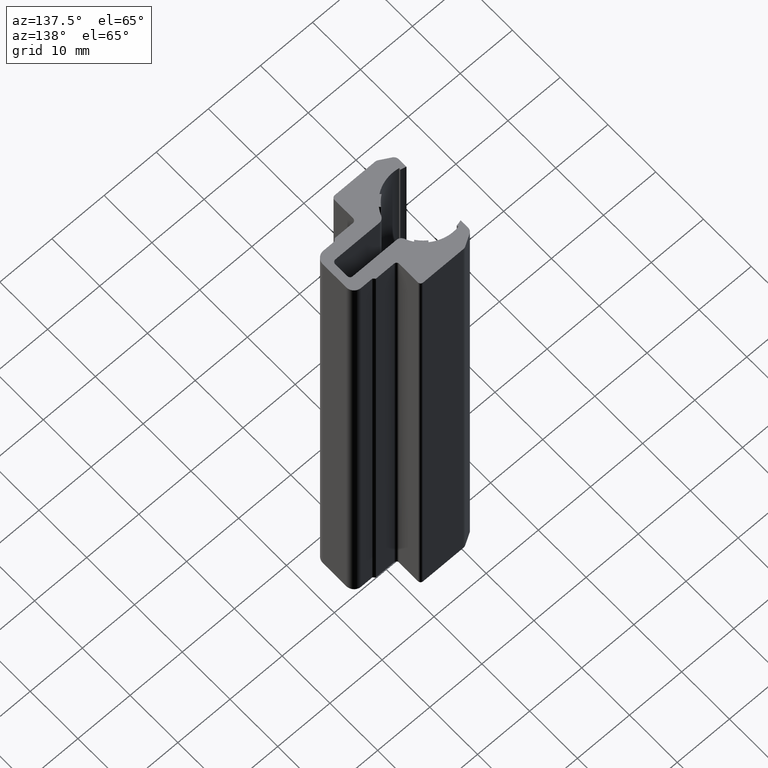
[diagram: clean part render]
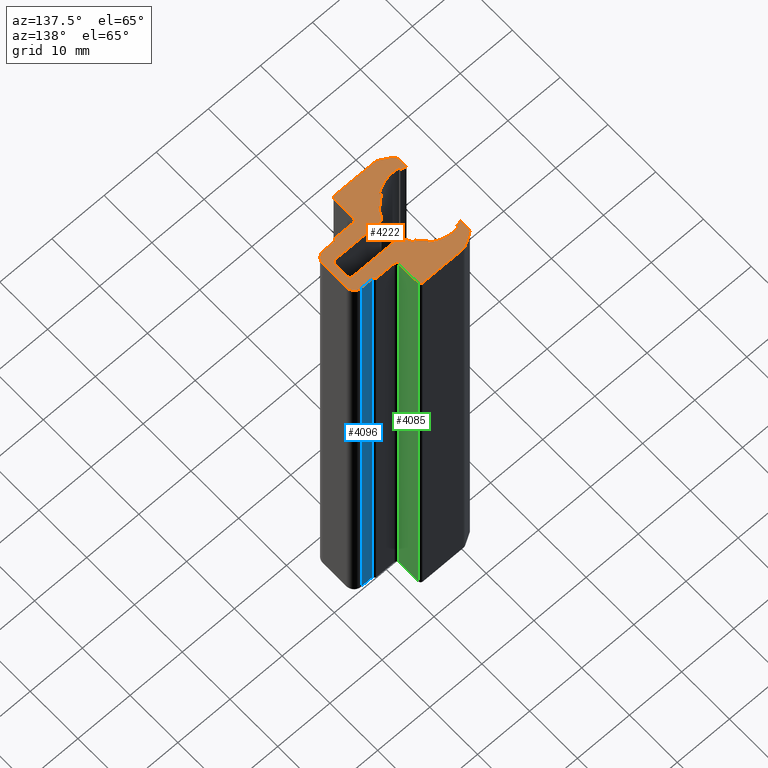
[diagram: same view with three faces highlighted in distinct colors, each labeled with its STEP entity id]
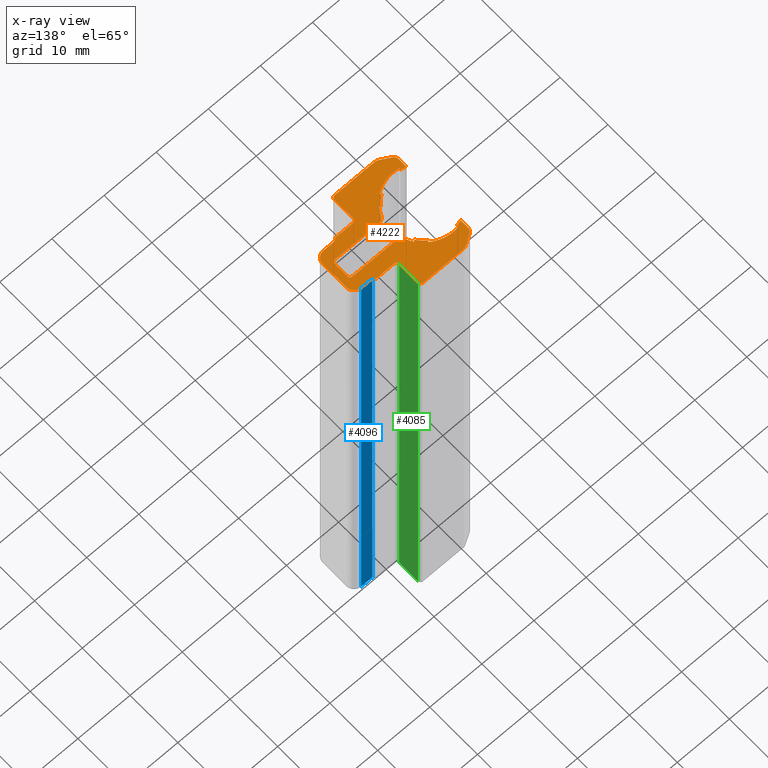
[diagram: x-ray of the same camera — body ghosted, the three highlighted faces saturated]
A machine part, auxiliary view with three faces highlighted in distinct colors.
The next image is the same camera in x-ray (body ghosted, the three faces saturated) — at least one of them is partly hidden behind the body in this view.
Their STEP definitions:

[orange] entity #4222 — the highlighted planar face has unit normal (0, 0, 1).
#216=FACE_OUTER_BOUND('',#418,.T.);
#418=EDGE_LOOP('',(#3619,#3620,#3621,#3622,#3623,#3624,#3625,#3626,#3627,
#3628,#3629,#3630,#3631,#3632,#3633,#3634,#3635,#3636,#3637,#3638,#3639,
#3640,#3641,#3642,#3643,#3644,#3645,#3646,#3647,#3648,#3649,#3650,#3651,
#3652,#3653,#3654,#3655,#3656,#3657,#3658,#3659,#3660,#3661,#3662,#3663,
#3664,#3665,#3666,#3667,#3668,#3669,#3670,#3671,#3672,#3673,#3674,#3675,
#3676,#3677,#3678,#3679,#3680,#3681,#3682,#3683,#3684,#3685,#3686,#3687,
#3688,#3689,#3690,#3691,#3692,#3693,#3694,#3695,#3696,#3697,#3698,#3699,
#3700,#3701,#3702,#3703,#3704,#3705,#3706,#3707,#3708,#3709,#3710,#3711,
#3712,#3713,#3714,#3715,#3716,#3717,#3718,#3719,#3720,#3721,#3722,#3723,
#3724,#3725,#3726,#3727,#3728,#3729,#3730,#3731,#3732,#3733,#3734,#3735,
#3736,#3737,#3738,#3739,#3740,#3741,#3742,#3743,#3744,#3745,#3746,#3747,
#3748,#3749,#3750,#3751,#3752,#3753,#3754,#3755,#3756,#3757,#3758,#3759,
#3760,#3761,#3762,#3763,#3764,#3765,#3766,#3767,#3768,#3769,#3770,#3771,
#3772,#3773,#3774,#3775,#3776,#3777,#3778,#3779,#3780,#3781,#3782,#3783,
#3784,#3785,#3786,#3787,#3788,#3789,#3790,#3791,#3792,#3793,#3794,#3795,
#3796,#3797,#3798,#3799,#3800,#3801,#3802,#3803,#3804,#3805,#3806,#3807,
#3808,#3809,#3810,#3811,#3812,#3813,#3814,#3815,#3816,#3817,#3818));
#419=LINE('',#5458,#1019);
#423=LINE('',#5466,#1023);
#426=LINE('',#5472,#1026);
#429=LINE('',#5478,#1029);
#432=LINE('',#5484,#1032);
#435=LINE('',#5490,#1035);
#438=LINE('',#5496,#1038);
#441=LINE('',#5502,#1041);
#444=LINE('',#5508,#1044);
#447=LINE('',#5514,#1047);
#450=LINE('',#5520,#1050);
#453=LINE('',#5526,#1053);
#456=LINE('',#5532,#1056);
#459=LINE('',#5538,#1059);
#462=LINE('',#5544,#1062);
#465=LINE('',#5550,#1065);
#468=LINE('',#5556,#1068);
#471=LINE('',#5562,#1071);
#474=LINE('',#5568,#1074);
#477=LINE('',#5574,#1077);
#480=LINE('',#5580,#1080);
#483=LINE('',#5586,#1083);
#486=LINE('',#5592,#1086);
#489=LINE('',#5598,#1089);
#492=LINE('',#5604,#1092);
#495=LINE('',#5610,#1095);
#498=LINE('',#5616,#1098);
#501=LINE('',#5622,#1101);
#504=LINE('',#5628,#1104);
#507=LINE('',#5634,#1107);
#510=LINE('',#5640,#1110);
#513=LINE('',#5646,#1113);
#516=LINE('',#5652,#1116);
#519=LINE('',#5658,#1119);
#522=LINE('',#5664,#1122);
#525=LINE('',#5670,#1125);
#528=LINE('',#5676,#1128);
#531=LINE('',#5682,#1131);
#534=LINE('',#5688,#1134);
#537=LINE('',#5694,#1137);
#540=LINE('',#5700,#1140);
#543=LINE('',#5706,#1143);
#546=LINE('',#5712,#1146);
#549=LINE('',#5718,#1149);
#552=LINE('',#5724,#1152);
#555=LINE('',#5730,#1155);
#558=LINE('',#5736,#1158);
#561=LINE('',#5742,#1161);
#564=LINE('',#5748,#1164);
#567=LINE('',#5754,#1167);
#570=LINE('',#5760,#1170);
#573=LINE('',#5766,#1173);
#576=LINE('',#5772,#1176);
#579=LINE('',#5778,#1179);
#582=LINE('',#5784,#1182);
#585=LINE('',#5790,#1185);
#588=LINE('',#5796,#1188);
#591=LINE('',#5802,#1191);
#594=LINE('',#5808,#1194);
#597=LINE('',#5814,#1197);
#600=LINE('',#5820,#1200);
#603=LINE('',#5826,#1203);
#606=LINE('',#5832,#1206);
#609=LINE('',#5838,#1209);
#612=LINE('',#5844,#1212);
#615=LINE('',#5850,#1215);
#618=LINE('',#5856,#1218);
#621=LINE('',#5862,#1221);
#624=LINE('',#5868,#1224);
#627=LINE('',#5874,#1227);
#630=LINE('',#5880,#1230);
#633=LINE('',#5886,#1233);
#636=LINE('',#5892,#1236);
#639=LINE('',#5898,#1239);
#642=LINE('',#5904,#1242);
#645=LINE('',#5910,#1245);
#648=LINE('',#5916,#1248);
#651=LINE('',#5922,#1251);
#654=LINE('',#5928,#1254);
#657=LINE('',#5934,#1257);
#660=LINE('',#5940,#1260);
#663=LINE('',#5946,#1263);
#666=LINE('',#5952,#1266);
#669=LINE('',#5958,#1269);
#672=LINE('',#5964,#1272);
#675=LINE('',#5970,#1275);
#678=LINE('',#5976,#1278);
#681=LINE('',#5982,#1281);
#684=LINE('',#5988,#1284);
#687=LINE('',#5994,#1287);
#690=LINE('',#6000,#1290);
#693=LINE('',#6006,#1293);
#696=LINE('',#6012,#1296);
#699=LINE('',#6018,#1299);
#702=LINE('',#6024,#1302);
#705=LINE('',#6030,#1305);
#708=LINE('',#6036,#1308);
#711=LINE('',#6042,#1311);
#714=LINE('',#6048,#1314);
#717=LINE('',#6054,#1317);
#720=LINE('',#6060,#1320);
#723=LINE('',#6066,#1323);
#726=LINE('',#6072,#1326);
#729=LINE('',#6078,#1329);
#732=LINE('',#6084,#1332);
#735=LINE('',#6090,#1335);
#738=LINE('',#6096,#1338);
#741=LINE('',#6102,#1341);
#744=LINE('',#6108,#1344);
#747=LINE('',#6114,#1347);
#750=LINE('',#6120,#1350);
#753=LINE('',#6126,#1353);
#756=LINE('',#6132,#1356);
#759=LINE('',#6138,#1359);
#762=LINE('',#6144,#1362);
#765=LINE('',#6150,#1365);
#768=LINE('',#6156,#1368);
#771=LINE('',#6162,#1371);
#774=LINE('',#6168,#1374);
#777=LINE('',#6174,#1377);
#780=LINE('',#6180,#1380);
#783=LINE('',#6186,#1383);
#786=LINE('',#6192,#1386);
#789=LINE('',#6198,#1389);
#792=LINE('',#6204,#1392);
#795=LINE('',#6210,#1395);
#798=LINE('',#6216,#1398);
#801=LINE('',#6222,#1401);
#804=LINE('',#6228,#1404);
#807=LINE('',#6234,#1407);
#810=LINE('',#6240,#1410);
#813=LINE('',#6246,#1413);
#816=LINE('',#6252,#1416);
#819=LINE('',#6258,#1419);
#822=LINE('',#6264,#1422);
#825=LINE('',#6270,#1425);
#828=LINE('',#6276,#1428);
#831=LINE('',#6282,#1431);
#834=LINE('',#6288,#1434);
#837=LINE('',#6294,#1437);
#840=LINE('',#6300,#1440);
#843=LINE('',#6306,#1443);
#846=LINE('',#6312,#1446);
#849=LINE('',#6318,#1449);
#852=LINE('',#6324,#1452);
#855=LINE('',#6330,#1455);
#858=LINE('',#6336,#1458);
#861=LINE('',#6342,#1461);
#864=LINE('',#6348,#1464);
#867=LINE('',#6354,#1467);
#870=LINE('',#6360,#1470);
#873=LINE('',#6366,#1473);
#876=LINE('',#6372,#1476);
#879=LINE('',#6378,#1479);
#882=LINE('',#6384,#1482);
#885=LINE('',#6390,#1485);
#888=LINE('',#6396,#1488);
#891=LINE('',#6402,#1491);
#894=LINE('',#6408,#1494);
#897=LINE('',#6414,#1497);
#900=LINE('',#6420,#1500);
#903=LINE('',#6426,#1503);
#906=LINE('',#6432,#1506);
#909=LINE('',#6438,#1509);
#912=LINE('',#6444,#1512);
#915=LINE('',#6450,#1515);
#918=LINE('',#6456,#1518);
#921=LINE('',#6462,#1521);
#924=LINE('',#6468,#1524);
#927=LINE('',#6474,#1527);
#930=LINE('',#6480,#1530);
#933=LINE('',#6486,#1533);
#936=LINE('',#6492,#1536);
#939=LINE('',#6498,#1539);
#942=LINE('',#6504,#1542);
#945=LINE('',#6510,#1545);
#948=LINE('',#6516,#1548);
#951=LINE('',#6522,#1551);
#954=LINE('',#6528,#1554);
#957=LINE('',#6534,#1557);
#960=LINE('',#6540,#1560);
#963=LINE('',#6546,#1563);
#966=LINE('',#6552,#1566);
#969=LINE('',#6558,#1569);
#972=LINE('',#6564,#1572);
#975=LINE('',#6570,#1575);
#978=LINE('',#6576,#1578);
#981=LINE('',#6582,#1581);
#984=LINE('',#6588,#1584);
#987=LINE('',#6594,#1587);
#990=LINE('',#6600,#1590);
#993=LINE('',#6606,#1593);
#996=LINE('',#6612,#1596);
#999=LINE('',#6618,#1599);
#1002=LINE('',#6624,#1602);
#1005=LINE('',#6630,#1605);
#1008=LINE('',#6636,#1608);
#1011=LINE('',#6642,#1611);
#1014=LINE('',#6648,#1614);
#1017=LINE('',#6653,#1617);
#1019=VECTOR('',#4452,10.);
#1023=VECTOR('',#4458,10.);
#1026=VECTOR('',#4463,10.);
#1029=VECTOR('',#4468,10.);
#1032=VECTOR('',#4473,10.);
#1035=VECTOR('',#4478,10.);
#1038=VECTOR('',#4483,10.);
#1041=VECTOR('',#4488,10.);
#1044=VECTOR('',#4493,10.);
#1047=VECTOR('',#4498,10.);
#1050=VECTOR('',#4503,10.);
#1053=VECTOR('',#4508,10.);
#1056=VECTOR('',#4513,10.);
#1059=VECTOR('',#4518,10.);
#1062=VECTOR('',#4523,10.);
#1065=VECTOR('',#4528,10.);
#1068=VECTOR('',#4533,10.);
#1071=VECTOR('',#4538,10.);
#1074=VECTOR('',#4543,10.);
#1077=VECTOR('',#4548,10.);
#1080=VECTOR('',#4553,10.);
#1083=VECTOR('',#4558,10.);
#1086=VECTOR('',#4563,10.);
#1089=VECTOR('',#4568,10.);
#1092=VECTOR('',#4573,10.);
#1095=VECTOR('',#4578,10.);
#1098=VECTOR('',#4583,10.);
#1101=VECTOR('',#4588,10.);
#1104=VECTOR('',#4593,10.);
#1107=VECTOR('',#4598,10.);
#1110=VECTOR('',#4603,10.);
#1113=VECTOR('',#4608,10.);
#1116=VECTOR('',#4613,10.);
#1119=VECTOR('',#4618,10.);
#1122=VECTOR('',#4623,10.);
#1125=VECTOR('',#4628,10.);
#1128=VECTOR('',#4633,10.);
#1131=VECTOR('',#4638,10.);
#1134=VECTOR('',#4643,10.);
#1137=VECTOR('',#4648,10.);
#1140=VECTOR('',#4653,10.);
#1143=VECTOR('',#4658,10.);
#1146=VECTOR('',#4663,10.);
#1149=VECTOR('',#4668,10.);
#1152=VECTOR('',#4673,10.);
#1155=VECTOR('',#4678,10.);
#1158=VECTOR('',#4683,10.);
#1161=VECTOR('',#4688,10.);
#1164=VECTOR('',#4693,10.);
#1167=VECTOR('',#4698,10.);
#1170=VECTOR('',#4703,10.);
#1173=VECTOR('',#4708,10.);
#1176=VECTOR('',#4713,10.);
#1179=VECTOR('',#4718,10.);
#1182=VECTOR('',#4723,10.);
#1185=VECTOR('',#4728,10.);
#1188=VECTOR('',#4733,10.);
#1191=VECTOR('',#4738,10.);
#1194=VECTOR('',#4743,10.);
#1197=VECTOR('',#4748,10.);
#1200=VECTOR('',#4753,10.);
#1203=VECTOR('',#4758,10.);
#1206=VECTOR('',#4763,10.);
#1209=VECTOR('',#4768,10.);
#1212=VECTOR('',#4773,10.);
#1215=VECTOR('',#4778,10.);
#1218=VECTOR('',#4783,10.);
#1221=VECTOR('',#4788,10.);
#1224=VECTOR('',#4793,10.);
#1227=VECTOR('',#4798,10.);
#1230=VECTOR('',#4803,10.);
#1233=VECTOR('',#4808,10.);
#1236=VECTOR('',#4813,10.);
#1239=VECTOR('',#4818,10.);
#1242=VECTOR('',#4823,10.);
#1245=VECTOR('',#4828,10.);
#1248=VECTOR('',#4833,10.);
#1251=VECTOR('',#4838,10.);
#1254=VECTOR('',#4843,10.);
#1257=VECTOR('',#4848,10.);
#1260=VECTOR('',#4853,10.);
#1263=VECTOR('',#4858,10.);
#1266=VECTOR('',#4863,10.);
#1269=VECTOR('',#4868,10.);
#1272=VECTOR('',#4873,10.);
#1275=VECTOR('',#4878,10.);
#1278=VECTOR('',#4883,10.);
#1281=VECTOR('',#4888,10.);
#1284=VECTOR('',#4893,10.);
#1287=VECTOR('',#4898,10.);
#1290=VECTOR('',#4903,10.);
#1293=VECTOR('',#4908,10.);
#1296=VECTOR('',#4913,10.);
#1299=VECTOR('',#4918,10.);
#1302=VECTOR('',#4923,10.);
#1305=VECTOR('',#4928,10.);
#1308=VECTOR('',#4933,10.);
#1311=VECTOR('',#4938,10.);
#1314=VECTOR('',#4943,10.);
#1317=VECTOR('',#4948,10.);
#1320=VECTOR('',#4953,10.);
#1323=VECTOR('',#4958,10.);
#1326=VECTOR('',#4963,10.);
#1329=VECTOR('',#4968,10.);
#1332=VECTOR('',#4973,10.);
#1335=VECTOR('',#4978,10.);
#1338=VECTOR('',#4983,10.);
#1341=VECTOR('',#4988,10.);
#1344=VECTOR('',#4993,10.);
#1347=VECTOR('',#4998,10.);
#1350=VECTOR('',#5003,10.);
#1353=VECTOR('',#5008,10.);
#1356=VECTOR('',#5013,10.);
#1359=VECTOR('',#5018,10.);
#1362=VECTOR('',#5023,10.);
#1365=VECTOR('',#5028,10.);
#1368=VECTOR('',#5033,10.);
#1371=VECTOR('',#5038,10.);
#1374=VECTOR('',#5043,10.);
#1377=VECTOR('',#5048,10.);
#1380=VECTOR('',#5053,10.);
#1383=VECTOR('',#5058,10.);
#1386=VECTOR('',#5063,10.);
#1389=VECTOR('',#5068,10.);
#1392=VECTOR('',#5073,10.);
#1395=VECTOR('',#5078,10.);
#1398=VECTOR('',#5083,10.);
#1401=VECTOR('',#5088,10.);
#1404=VECTOR('',#5093,10.);
#1407=VECTOR('',#5098,10.);
#1410=VECTOR('',#5103,10.);
#1413=VECTOR('',#5108,10.);
#1416=VECTOR('',#5113,10.);
#1419=VECTOR('',#5118,10.);
#1422=VECTOR('',#5123,10.);
#1425=VECTOR('',#5128,10.);
#1428=VECTOR('',#5133,10.);
#1431=VECTOR('',#5138,10.);
#1434=VECTOR('',#5143,10.);
#1437=VECTOR('',#5148,10.);
#1440=VECTOR('',#5153,10.);
#1443=VECTOR('',#5158,10.);
#1446=VECTOR('',#5163,10.);
#1449=VECTOR('',#5168,10.);
#1452=VECTOR('',#5173,10.);
#1455=VECTOR('',#5178,10.);
#1458=VECTOR('',#5183,10.);
#1461=VECTOR('',#5188,10.);
#1464=VECTOR('',#5193,10.);
#1467=VECTOR('',#5198,10.);
#1470=VECTOR('',#5203,10.);
#1473=VECTOR('',#5208,10.);
#1476=VECTOR('',#5213,10.);
#1479=VECTOR('',#5218,10.);
#1482=VECTOR('',#5223,10.);
#1485=VECTOR('',#5228,10.);
#1488=VECTOR('',#5233,10.);
#1491=VECTOR('',#5238,10.);
#1494=VECTOR('',#5243,10.);
#1497=VECTOR('',#5248,10.);
#1500=VECTOR('',#5253,10.);
#1503=VECTOR('',#5258,10.);
#1506=VECTOR('',#5263,10.);
#1509=VECTOR('',#5268,10.);
#1512=VECTOR('',#5273,10.);
#1515=VECTOR('',#5278,10.);
#1518=VECTOR('',#5283,10.);
#1521=VECTOR('',#5288,10.);
#1524=VECTOR('',#5293,10.);
#1527=VECTOR('',#5298,10.);
#1530=VECTOR('',#5303,10.);
#1533=VECTOR('',#5308,10.);
#1536=VECTOR('',#5313,10.);
#1539=VECTOR('',#5318,10.);
#1542=VECTOR('',#5323,10.);
#1545=VECTOR('',#5328,10.);
#1548=VECTOR('',#5333,10.);
#1551=VECTOR('',#5338,10.);
#1554=VECTOR('',#5343,10.);
#1557=VECTOR('',#5348,10.);
#1560=VECTOR('',#5353,10.);
#1563=VECTOR('',#5358,10.);
#1566=VECTOR('',#5363,10.);
#1569=VECTOR('',#5368,10.);
#1572=VECTOR('',#5373,10.);
#1575=VECTOR('',#5378,10.);
#1578=VECTOR('',#5383,10.);
#1581=VECTOR('',#5388,10.);
#1584=VECTOR('',#5393,10.);
#1587=VECTOR('',#5398,10.);
#1590=VECTOR('',#5403,10.);
#1593=VECTOR('',#5408,10.);
#1596=VECTOR('',#5413,10.);
#1599=VECTOR('',#5418,10.);
#1602=VECTOR('',#5423,10.);
#1605=VECTOR('',#5428,10.);
#1608=VECTOR('',#5433,10.);
#1611=VECTOR('',#5438,10.);
#1614=VECTOR('',#5443,10.);
#1617=VECTOR('',#5448,10.);
#1619=VERTEX_POINT('',#5456);
#1620=VERTEX_POINT('',#5457);
#1623=VERTEX_POINT('',#5465);
#1625=VERTEX_POINT('',#5471);
#1627=VERTEX_POINT('',#5477);
#1629=VERTEX_POINT('',#5483);
#1631=VERTEX_POINT('',#5489);
#1633=VERTEX_POINT('',#5495);
#1635=VERTEX_POINT('',#5501);
#1637=VERTEX_POINT('',#5507);
#1639=VERTEX_POINT('',#5513);
#1641=VERTEX_POINT('',#5519);
#1643=VERTEX_POINT('',#5525);
#1645=VERTEX_POINT('',#5531);
#1647=VERTEX_POINT('',#5537);
#1649=VERTEX_POINT('',#5543);
#1651=VERTEX_POINT('',#5549);
#1653=VERTEX_POINT('',#5555);
#1655=VERTEX_POINT('',#5561);
#1657=VERTEX_POINT('',#5567);
#1659=VERTEX_POINT('',#5573);
#1661=VERTEX_POINT('',#5579);
#1663=VERTEX_POINT('',#5585);
#1665=VERTEX_POINT('',#5591);
#1667=VERTEX_POINT('',#5597);
#1669=VERTEX_POINT('',#5603);
#1671=VERTEX_POINT('',#5609);
#1673=VERTEX_POINT('',#5615);
#1675=VERTEX_POINT('',#5621);
#1677=VERTEX_POINT('',#5627);
#1679=VERTEX_POINT('',#5633);
#1681=VERTEX_POINT('',#5639);
#1683=VERTEX_POINT('',#5645);
#1685=VERTEX_POINT('',#5651);
#1687=VERTEX_POINT('',#5657);
#1689=VERTEX_POINT('',#5663);
#1691=VERTEX_POINT('',#5669);
#1693=VERTEX_POINT('',#5675);
#1695=VERTEX_POINT('',#5681);
#1697=VERTEX_POINT('',#5687);
#1699=VERTEX_POINT('',#5693);
#1701=VERTEX_POINT('',#5699);
#1703=VERTEX_POINT('',#5705);
#1705=VERTEX_POINT('',#5711);
#1707=VERTEX_POINT('',#5717);
#1709=VERTEX_POINT('',#5723);
#1711=VERTEX_POINT('',#5729);
#1713=VERTEX_POINT('',#5735);
#1715=VERTEX_POINT('',#5741);
#1717=VERTEX_POINT('',#5747);
#1719=VERTEX_POINT('',#5753);
#1721=VERTEX_POINT('',#5759);
#1723=VERTEX_POINT('',#5765);
#1725=VERTEX_POINT('',#5771);
#1727=VERTEX_POINT('',#5777);
#1729=VERTEX_POINT('',#5783);
#1731=VERTEX_POINT('',#5789);
#1733=VERTEX_POINT('',#5795);
#1735=VERTEX_POINT('',#5801);
#1737=VERTEX_POINT('',#5807);
#1739=VERTEX_POINT('',#5813);
#1741=VERTEX_POINT('',#5819);
#1743=VERTEX_POINT('',#5825);
#1745=VERTEX_POINT('',#5831);
#1747=VERTEX_POINT('',#5837);
#1749=VERTEX_POINT('',#5843);
#1751=VERTEX_POINT('',#5849);
#1753=VERTEX_POINT('',#5855);
#1755=VERTEX_POINT('',#5861);
#1757=VERTEX_POINT('',#5867);
#1759=VERTEX_POINT('',#5873);
#1761=VERTEX_POINT('',#5879);
#1763=VERTEX_POINT('',#5885);
#1765=VERTEX_POINT('',#5891);
#1767=VERTEX_POINT('',#5897);
#1769=VERTEX_POINT('',#5903);
#1771=VERTEX_POINT('',#5909);
#1773=VERTEX_POINT('',#5915);
#1775=VERTEX_POINT('',#5921);
#1777=VERTEX_POINT('',#5927);
#1779=VERTEX_POINT('',#5933);
#1781=VERTEX_POINT('',#5939);
#1783=VERTEX_POINT('',#5945);
#1785=VERTEX_POINT('',#5951);
#1787=VERTEX_POINT('',#5957);
#1789=VERTEX_POINT('',#5963);
#1791=VERTEX_POINT('',#5969);
#1793=VERTEX_POINT('',#5975);
#1795=VERTEX_POINT('',#5981);
#1797=VERTEX_POINT('',#5987);
#1799=VERTEX_POINT('',#5993);
#1801=VERTEX_POINT('',#5999);
#1803=VERTEX_POINT('',#6005);
#1805=VERTEX_POINT('',#6011);
#1807=VERTEX_POINT('',#6017);
#1809=VERTEX_POINT('',#6023);
#1811=VERTEX_POINT('',#6029);
#1813=VERTEX_POINT('',#6035);
#1815=VERTEX_POINT('',#6041);
#1817=VERTEX_POINT('',#6047);
#1819=VERTEX_POINT('',#6053);
#1821=VERTEX_POINT('',#6059);
#1823=VERTEX_POINT('',#6065);
#1825=VERTEX_POINT('',#6071);
#1827=VERTEX_POINT('',#6077);
#1829=VERTEX_POINT('',#6083);
#1831=VERTEX_POINT('',#6089);
#1833=VERTEX_POINT('',#6095);
#1835=VERTEX_POINT('',#6101);
#1837=VERTEX_POINT('',#6107);
#1839=VERTEX_POINT('',#6113);
#1841=VERTEX_POINT('',#6119);
#1843=VERTEX_POINT('',#6125);
#1845=VERTEX_POINT('',#6131);
#1847=VERTEX_POINT('',#6137);
#1849=VERTEX_POINT('',#6143);
#1851=VERTEX_POINT('',#6149);
#1853=VERTEX_POINT('',#6155);
#1855=VERTEX_POINT('',#6161);
#1857=VERTEX_POINT('',#6167);
#1859=VERTEX_POINT('',#6173);
#1861=VERTEX_POINT('',#6179);
#1863=VERTEX_POINT('',#6185);
#1865=VERTEX_POINT('',#6191);
#1867=VERTEX_POINT('',#6197);
#1869=VERTEX_POINT('',#6203);
#1871=VERTEX_POINT('',#6209);
#1873=VERTEX_POINT('',#6215);
#1875=VERTEX_POINT('',#6221);
#1877=VERTEX_POINT('',#6227);
#1879=VERTEX_POINT('',#6233);
#1881=VERTEX_POINT('',#6239);
#1883=VERTEX_POINT('',#6245);
#1885=VERTEX_POINT('',#6251);
#1887=VERTEX_POINT('',#6257);
#1889=VERTEX_POINT('',#6263);
#1891=VERTEX_POINT('',#6269);
#1893=VERTEX_POINT('',#6275);
#1895=VERTEX_POINT('',#6281);
#1897=VERTEX_POINT('',#6287);
#1899=VERTEX_POINT('',#6293);
#1901=VERTEX_POINT('',#6299);
#1903=VERTEX_POINT('',#6305);
#1905=VERTEX_POINT('',#6311);
#1907=VERTEX_POINT('',#6317);
#1909=VERTEX_POINT('',#6323);
#1911=VERTEX_POINT('',#6329);
#1913=VERTEX_POINT('',#6335);
#1915=VERTEX_POINT('',#6341);
#1917=VERTEX_POINT('',#6347);
#1919=VERTEX_POINT('',#6353);
#1921=VERTEX_POINT('',#6359);
#1923=VERTEX_POINT('',#6365);
#1925=VERTEX_POINT('',#6371);
#1927=VERTEX_POINT('',#6377);
#1929=VERTEX_POINT('',#6383);
#1931=VERTEX_POINT('',#6389);
#1933=VERTEX_POINT('',#6395);
#1935=VERTEX_POINT('',#6401);
#1937=VERTEX_POINT('',#6407);
#1939=VERTEX_POINT('',#6413);
#1941=VERTEX_POINT('',#6419);
#1943=VERTEX_POINT('',#6425);
#1945=VERTEX_POINT('',#6431);
#1947=VERTEX_POINT('',#6437);
#1949=VERTEX_POINT('',#6443);
#1951=VERTEX_POINT('',#6449);
#1953=VERTEX_POINT('',#6455);
#1955=VERTEX_POINT('',#6461);
#1957=VERTEX_POINT('',#6467);
#1959=VERTEX_POINT('',#6473);
#1961=VERTEX_POINT('',#6479);
#1963=VERTEX_POINT('',#6485);
#1965=VERTEX_POINT('',#6491);
#1967=VERTEX_POINT('',#6497);
#1969=VERTEX_POINT('',#6503);
#1971=VERTEX_POINT('',#6509);
#1973=VERTEX_POINT('',#6515);
#1975=VERTEX_POINT('',#6521);
#1977=VERTEX_POINT('',#6527);
#1979=VERTEX_POINT('',#6533);
#1981=VERTEX_POINT('',#6539);
#1983=VERTEX_POINT('',#6545);
#1985=VERTEX_POINT('',#6551);
#1987=VERTEX_POINT('',#6557);
#1989=VERTEX_POINT('',#6563);
#1991=VERTEX_POINT('',#6569);
#1993=VERTEX_POINT('',#6575);
#1995=VERTEX_POINT('',#6581);
#1997=VERTEX_POINT('',#6587);
#1999=VERTEX_POINT('',#6593);
#2001=VERTEX_POINT('',#6599);
#2003=VERTEX_POINT('',#6605);
#2005=VERTEX_POINT('',#6611);
#2007=VERTEX_POINT('',#6617);
#2009=VERTEX_POINT('',#6623);
#2011=VERTEX_POINT('',#6629);
#2013=VERTEX_POINT('',#6635);
#2015=VERTEX_POINT('',#6641);
#2017=VERTEX_POINT('',#6647);
#2019=EDGE_CURVE('',#1619,#1620,#419,.T.);
#2023=EDGE_CURVE('',#1620,#1623,#423,.T.);
#2026=EDGE_CURVE('',#1623,#1625,#426,.T.);
#2029=EDGE_CURVE('',#1625,#1627,#429,.T.);
#2032=EDGE_CURVE('',#1627,#1629,#432,.T.);
#2035=EDGE_CURVE('',#1629,#1631,#435,.T.);
#2038=EDGE_CURVE('',#1631,#1633,#438,.T.);
#2041=EDGE_CURVE('',#1633,#1635,#441,.T.);
#2044=EDGE_CURVE('',#1635,#1637,#444,.T.);
#2047=EDGE_CURVE('',#1637,#1639,#447,.T.);
#2050=EDGE_CURVE('',#1639,#1641,#450,.T.);
#2053=EDGE_CURVE('',#1641,#1643,#453,.T.);
#2056=EDGE_CURVE('',#1643,#1645,#456,.T.);
#2059=EDGE_CURVE('',#1645,#1647,#459,.T.);
#2062=EDGE_CURVE('',#1647,#1649,#462,.T.);
#2065=EDGE_CURVE('',#1649,#1651,#465,.T.);
#2068=EDGE_CURVE('',#1651,#1653,#468,.T.);
#2071=EDGE_CURVE('',#1653,#1655,#471,.T.);
#2074=EDGE_CURVE('',#1655,#1657,#474,.T.);
#2077=EDGE_CURVE('',#1657,#1659,#477,.T.);
#2080=EDGE_CURVE('',#1659,#1661,#480,.T.);
#2083=EDGE_CURVE('',#1661,#1663,#483,.T.);
#2086=EDGE_CURVE('',#1663,#1665,#486,.T.);
#2089=EDGE_CURVE('',#1665,#1667,#489,.T.);
#2092=EDGE_CURVE('',#1667,#1669,#492,.T.);
#2095=EDGE_CURVE('',#1669,#1671,#495,.T.);
#2098=EDGE_CURVE('',#1671,#1673,#498,.T.);
#2101=EDGE_CURVE('',#1673,#1675,#501,.T.);
#2104=EDGE_CURVE('',#1675,#1677,#504,.T.);
#2107=EDGE_CURVE('',#1677,#1679,#507,.T.);
#2110=EDGE_CURVE('',#1679,#1681,#510,.T.);
#2113=EDGE_CURVE('',#1681,#1683,#513,.T.);
#2116=EDGE_CURVE('',#1683,#1685,#516,.T.);
#2119=EDGE_CURVE('',#1685,#1687,#519,.T.);
#2122=EDGE_CURVE('',#1687,#1689,#522,.T.);
#2125=EDGE_CURVE('',#1689,#1691,#525,.T.);
#2128=EDGE_CURVE('',#1691,#1693,#528,.T.);
#2131=EDGE_CURVE('',#1693,#1695,#531,.T.);
#2134=EDGE_CURVE('',#1695,#1697,#534,.T.);
#2137=EDGE_CURVE('',#1697,#1699,#537,.T.);
#2140=EDGE_CURVE('',#1699,#1701,#540,.T.);
#2143=EDGE_CURVE('',#1701,#1703,#543,.T.);
#2146=EDGE_CURVE('',#1703,#1705,#546,.T.);
#2149=EDGE_CURVE('',#1705,#1707,#549,.T.);
#2152=EDGE_CURVE('',#1707,#1709,#552,.T.);
#2155=EDGE_CURVE('',#1709,#1711,#555,.T.);
#2158=EDGE_CURVE('',#1711,#1713,#558,.T.);
#2161=EDGE_CURVE('',#1713,#1715,#561,.T.);
#2164=EDGE_CURVE('',#1715,#1717,#564,.T.);
#2167=EDGE_CURVE('',#1717,#1719,#567,.T.);
#2170=EDGE_CURVE('',#1719,#1721,#570,.T.);
#2173=EDGE_CURVE('',#1721,#1723,#573,.T.);
#2176=EDGE_CURVE('',#1723,#1725,#576,.T.);
#2179=EDGE_CURVE('',#1725,#1727,#579,.T.);
#2182=EDGE_CURVE('',#1727,#1729,#582,.T.);
#2185=EDGE_CURVE('',#1729,#1731,#585,.T.);
#2188=EDGE_CURVE('',#1731,#1733,#588,.T.);
#2191=EDGE_CURVE('',#1733,#1735,#591,.T.);
#2194=EDGE_CURVE('',#1735,#1737,#594,.T.);
#2197=EDGE_CURVE('',#1737,#1739,#597,.T.);
#2200=EDGE_CURVE('',#1739,#1741,#600,.T.);
#2203=EDGE_CURVE('',#1741,#1743,#603,.T.);
#2206=EDGE_CURVE('',#1743,#1745,#606,.T.);
#2209=EDGE_CURVE('',#1745,#1747,#609,.T.);
#2212=EDGE_CURVE('',#1747,#1749,#612,.T.);
#2215=EDGE_CURVE('',#1749,#1751,#615,.T.);
#2218=EDGE_CURVE('',#1751,#1753,#618,.T.);
#2221=EDGE_CURVE('',#1753,#1755,#621,.T.);
#2224=EDGE_CURVE('',#1755,#1757,#624,.T.);
#2227=EDGE_CURVE('',#1757,#1759,#627,.T.);
#2230=EDGE_CURVE('',#1759,#1761,#630,.T.);
#2233=EDGE_CURVE('',#1761,#1763,#633,.T.);
#2236=EDGE_CURVE('',#1763,#1765,#636,.T.);
#2239=EDGE_CURVE('',#1765,#1767,#639,.T.);
#2242=EDGE_CURVE('',#1767,#1769,#642,.T.);
#2245=EDGE_CURVE('',#1769,#1771,#645,.T.);
#2248=EDGE_CURVE('',#1771,#1773,#648,.T.);
#2251=EDGE_CURVE('',#1773,#1775,#651,.T.);
#2254=EDGE_CURVE('',#1775,#1777,#654,.T.);
#2257=EDGE_CURVE('',#1777,#1779,#657,.T.);
#2260=EDGE_CURVE('',#1779,#1781,#660,.T.);
#2263=EDGE_CURVE('',#1781,#1783,#663,.T.);
#2266=EDGE_CURVE('',#1783,#1785,#666,.T.);
#2269=EDGE_CURVE('',#1785,#1787,#669,.T.);
#2272=EDGE_CURVE('',#1787,#1789,#672,.T.);
#2275=EDGE_CURVE('',#1789,#1791,#675,.T.);
#2278=EDGE_CURVE('',#1791,#1793,#678,.T.);
#2281=EDGE_CURVE('',#1793,#1795,#681,.T.);
#2284=EDGE_CURVE('',#1795,#1797,#684,.T.);
#2287=EDGE_CURVE('',#1797,#1799,#687,.T.);
#2290=EDGE_CURVE('',#1799,#1801,#690,.T.);
#2293=EDGE_CURVE('',#1801,#1803,#693,.T.);
#2296=EDGE_CURVE('',#1803,#1805,#696,.T.);
#2299=EDGE_CURVE('',#1805,#1807,#699,.T.);
#2302=EDGE_CURVE('',#1807,#1809,#702,.T.);
#2305=EDGE_CURVE('',#1809,#1811,#705,.T.);
#2308=EDGE_CURVE('',#1811,#1813,#708,.T.);
#2311=EDGE_CURVE('',#1813,#1815,#711,.T.);
#2314=EDGE_CURVE('',#1815,#1817,#714,.T.);
#2317=EDGE_CURVE('',#1817,#1819,#717,.T.);
#2320=EDGE_CURVE('',#1819,#1821,#720,.T.);
#2323=EDGE_CURVE('',#1821,#1823,#723,.T.);
#2326=EDGE_CURVE('',#1823,#1825,#726,.T.);
#2329=EDGE_CURVE('',#1825,#1827,#729,.T.);
#2332=EDGE_CURVE('',#1827,#1829,#732,.T.);
#2335=EDGE_CURVE('',#1829,#1831,#735,.T.);
#2338=EDGE_CURVE('',#1831,#1833,#738,.T.);
#2341=EDGE_CURVE('',#1833,#1835,#741,.T.);
#2344=EDGE_CURVE('',#1835,#1837,#744,.T.);
#2347=EDGE_CURVE('',#1837,#1839,#747,.T.);
#2350=EDGE_CURVE('',#1839,#1841,#750,.T.);
#2353=EDGE_CURVE('',#1841,#1843,#753,.T.);
#2356=EDGE_CURVE('',#1843,#1845,#756,.T.);
#2359=EDGE_CURVE('',#1845,#1847,#759,.T.);
#2362=EDGE_CURVE('',#1847,#1849,#762,.T.);
#2365=EDGE_CURVE('',#1849,#1851,#765,.T.);
#2368=EDGE_CURVE('',#1851,#1853,#768,.T.);
#2371=EDGE_CURVE('',#1853,#1855,#771,.T.);
#2374=EDGE_CURVE('',#1855,#1857,#774,.T.);
#2377=EDGE_CURVE('',#1857,#1859,#777,.T.);
#2380=EDGE_CURVE('',#1859,#1861,#780,.T.);
#2383=EDGE_CURVE('',#1861,#1863,#783,.T.);
#2386=EDGE_CURVE('',#1863,#1865,#786,.T.);
#2389=EDGE_CURVE('',#1865,#1867,#789,.T.);
#2392=EDGE_CURVE('',#1867,#1869,#792,.T.);
#2395=EDGE_CURVE('',#1869,#1871,#795,.T.);
#2398=EDGE_CURVE('',#1871,#1873,#798,.T.);
#2401=EDGE_CURVE('',#1873,#1875,#801,.T.);
#2404=EDGE_CURVE('',#1875,#1877,#804,.T.);
#2407=EDGE_CURVE('',#1877,#1879,#807,.T.);
#2410=EDGE_CURVE('',#1879,#1881,#810,.T.);
#2413=EDGE_CURVE('',#1881,#1883,#813,.T.);
#2416=EDGE_CURVE('',#1883,#1885,#816,.T.);
#2419=EDGE_CURVE('',#1885,#1887,#819,.T.);
#2422=EDGE_CURVE('',#1887,#1889,#822,.T.);
#2425=EDGE_CURVE('',#1889,#1891,#825,.T.);
#2428=EDGE_CURVE('',#1891,#1893,#828,.T.);
#2431=EDGE_CURVE('',#1893,#1895,#831,.T.);
#2434=EDGE_CURVE('',#1895,#1897,#834,.T.);
#2437=EDGE_CURVE('',#1897,#1899,#837,.T.);
#2440=EDGE_CURVE('',#1899,#1901,#840,.T.);
#2443=EDGE_CURVE('',#1901,#1903,#843,.T.);
#2446=EDGE_CURVE('',#1903,#1905,#846,.T.);
#2449=EDGE_CURVE('',#1905,#1907,#849,.T.);
#2452=EDGE_CURVE('',#1907,#1909,#852,.T.);
#2455=EDGE_CURVE('',#1909,#1911,#855,.T.);
#2458=EDGE_CURVE('',#1911,#1913,#858,.T.);
#2461=EDGE_CURVE('',#1913,#1915,#861,.T.);
#2464=EDGE_CURVE('',#1915,#1917,#864,.T.);
#2467=EDGE_CURVE('',#1917,#1919,#867,.T.);
#2470=EDGE_CURVE('',#1919,#1921,#870,.T.);
#2473=EDGE_CURVE('',#1921,#1923,#873,.T.);
#2476=EDGE_CURVE('',#1923,#1925,#876,.T.);
#2479=EDGE_CURVE('',#1925,#1927,#879,.T.);
#2482=EDGE_CURVE('',#1927,#1929,#882,.T.);
#2485=EDGE_CURVE('',#1929,#1931,#885,.T.);
#2488=EDGE_CURVE('',#1931,#1933,#888,.T.);
#2491=EDGE_CURVE('',#1933,#1935,#891,.T.);
#2494=EDGE_CURVE('',#1935,#1937,#894,.T.);
#2497=EDGE_CURVE('',#1937,#1939,#897,.T.);
#2500=EDGE_CURVE('',#1939,#1941,#900,.T.);
#2503=EDGE_CURVE('',#1941,#1943,#903,.T.);
#2506=EDGE_CURVE('',#1943,#1945,#906,.T.);
#2509=EDGE_CURVE('',#1945,#1947,#909,.T.);
#2512=EDGE_CURVE('',#1947,#1949,#912,.T.);
#2515=EDGE_CURVE('',#1949,#1951,#915,.T.);
#2518=EDGE_CURVE('',#1951,#1953,#918,.T.);
#2521=EDGE_CURVE('',#1953,#1955,#921,.T.);
#2524=EDGE_CURVE('',#1955,#1957,#924,.T.);
#2527=EDGE_CURVE('',#1957,#1959,#927,.T.);
#2530=EDGE_CURVE('',#1959,#1961,#930,.T.);
#2533=EDGE_CURVE('',#1961,#1963,#933,.T.);
#2536=EDGE_CURVE('',#1963,#1965,#936,.T.);
#2539=EDGE_CURVE('',#1965,#1967,#939,.T.);
#2542=EDGE_CURVE('',#1967,#1969,#942,.T.);
#2545=EDGE_CURVE('',#1969,#1971,#945,.T.);
#2548=EDGE_CURVE('',#1971,#1973,#948,.T.);
#2551=EDGE_CURVE('',#1973,#1975,#951,.T.);
#2554=EDGE_CURVE('',#1975,#1977,#954,.T.);
#2557=EDGE_CURVE('',#1977,#1979,#957,.T.);
#2560=EDGE_CURVE('',#1979,#1981,#960,.T.);
#2563=EDGE_CURVE('',#1981,#1983,#963,.T.);
#2566=EDGE_CURVE('',#1983,#1985,#966,.T.);
#2569=EDGE_CURVE('',#1985,#1987,#969,.T.);
#2572=EDGE_CURVE('',#1987,#1989,#972,.T.);
#2575=EDGE_CURVE('',#1989,#1991,#975,.T.);
#2578=EDGE_CURVE('',#1991,#1993,#978,.T.);
#2581=EDGE_CURVE('',#1993,#1995,#981,.T.);
#2584=EDGE_CURVE('',#1995,#1997,#984,.T.);
#2587=EDGE_CURVE('',#1997,#1999,#987,.T.);
#2590=EDGE_CURVE('',#1999,#2001,#990,.T.);
#2593=EDGE_CURVE('',#2001,#2003,#993,.T.);
#2596=EDGE_CURVE('',#2003,#2005,#996,.T.);
#2599=EDGE_CURVE('',#2005,#2007,#999,.T.);
#2602=EDGE_CURVE('',#2007,#2009,#1002,.T.);
#2605=EDGE_CURVE('',#2009,#2011,#1005,.T.);
#2608=EDGE_CURVE('',#2011,#2013,#1008,.T.);
#2611=EDGE_CURVE('',#2013,#2015,#1011,.T.);
#2614=EDGE_CURVE('',#2015,#2017,#1014,.T.);
#2617=EDGE_CURVE('',#2017,#1619,#1017,.T.);
#3619=ORIENTED_EDGE('',*,*,#2019,.F.);
#3620=ORIENTED_EDGE('',*,*,#2617,.F.);
#3621=ORIENTED_EDGE('',*,*,#2614,.F.);
#3622=ORIENTED_EDGE('',*,*,#2611,.F.);
#3623=ORIENTED_EDGE('',*,*,#2608,.F.);
#3624=ORIENTED_EDGE('',*,*,#2605,.F.);
#3625=ORIENTED_EDGE('',*,*,#2602,.F.);
#3626=ORIENTED_EDGE('',*,*,#2599,.F.);
#3627=ORIENTED_EDGE('',*,*,#2596,.F.);
#3628=ORIENTED_EDGE('',*,*,#2593,.F.);
#3629=ORIENTED_EDGE('',*,*,#2590,.F.);
#3630=ORIENTED_EDGE('',*,*,#2587,.F.);
#3631=ORIENTED_EDGE('',*,*,#2584,.F.);
#3632=ORIENTED_EDGE('',*,*,#2581,.F.);
#3633=ORIENTED_EDGE('',*,*,#2578,.F.);
#3634=ORIENTED_EDGE('',*,*,#2575,.F.);
#3635=ORIENTED_EDGE('',*,*,#2572,.F.);
#3636=ORIENTED_EDGE('',*,*,#2569,.F.);
#3637=ORIENTED_EDGE('',*,*,#2566,.F.);
#3638=ORIENTED_EDGE('',*,*,#2563,.F.);
#3639=ORIENTED_EDGE('',*,*,#2560,.F.);
#3640=ORIENTED_EDGE('',*,*,#2557,.F.);
#3641=ORIENTED_EDGE('',*,*,#2554,.F.);
#3642=ORIENTED_EDGE('',*,*,#2551,.F.);
#3643=ORIENTED_EDGE('',*,*,#2548,.F.);
#3644=ORIENTED_EDGE('',*,*,#2545,.F.);
#3645=ORIENTED_EDGE('',*,*,#2542,.F.);
#3646=ORIENTED_EDGE('',*,*,#2539,.F.);
#3647=ORIENTED_EDGE('',*,*,#2536,.F.);
#3648=ORIENTED_EDGE('',*,*,#2533,.F.);
#3649=ORIENTED_EDGE('',*,*,#2530,.F.);
#3650=ORIENTED_EDGE('',*,*,#2527,.F.);
#3651=ORIENTED_EDGE('',*,*,#2524,.F.);
#3652=ORIENTED_EDGE('',*,*,#2521,.F.);
#3653=ORIENTED_EDGE('',*,*,#2518,.F.);
#3654=ORIENTED_EDGE('',*,*,#2515,.F.);
#3655=ORIENTED_EDGE('',*,*,#2512,.F.);
#3656=ORIENTED_EDGE('',*,*,#2509,.F.);
#3657=ORIENTED_EDGE('',*,*,#2506,.F.);
#3658=ORIENTED_EDGE('',*,*,#2503,.F.);
#3659=ORIENTED_EDGE('',*,*,#2500,.F.);
#3660=ORIENTED_EDGE('',*,*,#2497,.F.);
#3661=ORIENTED_EDGE('',*,*,#2494,.F.);
#3662=ORIENTED_EDGE('',*,*,#2491,.F.);
#3663=ORIENTED_EDGE('',*,*,#2488,.F.);
#3664=ORIENTED_EDGE('',*,*,#2485,.F.);
#3665=ORIENTED_EDGE('',*,*,#2482,.F.);
#3666=ORIENTED_EDGE('',*,*,#2479,.F.);
#3667=ORIENTED_EDGE('',*,*,#2476,.F.);
#3668=ORIENTED_EDGE('',*,*,#2473,.F.);
#3669=ORIENTED_EDGE('',*,*,#2470,.F.);
#3670=ORIENTED_EDGE('',*,*,#2467,.F.);
#3671=ORIENTED_EDGE('',*,*,#2464,.F.);
#3672=ORIENTED_EDGE('',*,*,#2461,.F.);
#3673=ORIENTED_EDGE('',*,*,#2458,.F.);
#3674=ORIENTED_EDGE('',*,*,#2455,.F.);
#3675=ORIENTED_EDGE('',*,*,#2452,.F.);
#3676=ORIENTED_EDGE('',*,*,#2449,.F.);
#3677=ORIENTED_EDGE('',*,*,#2446,.F.);
#3678=ORIENTED_EDGE('',*,*,#2443,.F.);
#3679=ORIENTED_EDGE('',*,*,#2440,.F.);
#3680=ORIENTED_EDGE('',*,*,#2437,.F.);
#3681=ORIENTED_EDGE('',*,*,#2434,.F.);
#3682=ORIENTED_EDGE('',*,*,#2431,.F.);
#3683=ORIENTED_EDGE('',*,*,#2428,.F.);
#3684=ORIENTED_EDGE('',*,*,#2425,.F.);
#3685=ORIENTED_EDGE('',*,*,#2422,.F.);
#3686=ORIENTED_EDGE('',*,*,#2419,.F.);
#3687=ORIENTED_EDGE('',*,*,#2416,.F.);
#3688=ORIENTED_EDGE('',*,*,#2413,.F.);
#3689=ORIENTED_EDGE('',*,*,#2410,.F.);
#3690=ORIENTED_EDGE('',*,*,#2407,.F.);
#3691=ORIENTED_EDGE('',*,*,#2404,.F.);
#3692=ORIENTED_EDGE('',*,*,#2401,.F.);
#3693=ORIENTED_EDGE('',*,*,#2398,.F.);
#3694=ORIENTED_EDGE('',*,*,#2395,.F.);
#3695=ORIENTED_EDGE('',*,*,#2392,.F.);
#3696=ORIENTED_EDGE('',*,*,#2389,.F.);
#3697=ORIENTED_EDGE('',*,*,#2386,.F.);
#3698=ORIENTED_EDGE('',*,*,#2383,.F.);
#3699=ORIENTED_EDGE('',*,*,#2380,.F.);
#3700=ORIENTED_EDGE('',*,*,#2377,.F.);
#3701=ORIENTED_EDGE('',*,*,#2374,.F.);
#3702=ORIENTED_EDGE('',*,*,#2371,.F.);
#3703=ORIENTED_EDGE('',*,*,#2368,.F.);
#3704=ORIENTED_EDGE('',*,*,#2365,.F.);
#3705=ORIENTED_EDGE('',*,*,#2362,.F.);
#3706=ORIENTED_EDGE('',*,*,#2359,.F.);
#3707=ORIENTED_EDGE('',*,*,#2356,.F.);
#3708=ORIENTED_EDGE('',*,*,#2353,.F.);
#3709=ORIENTED_EDGE('',*,*,#2350,.F.);
#3710=ORIENTED_EDGE('',*,*,#2347,.F.);
#3711=ORIENTED_EDGE('',*,*,#2344,.F.);
#3712=ORIENTED_EDGE('',*,*,#2341,.F.);
#3713=ORIENTED_EDGE('',*,*,#2338,.F.);
#3714=ORIENTED_EDGE('',*,*,#2335,.F.);
#3715=ORIENTED_EDGE('',*,*,#2332,.F.);
#3716=ORIENTED_EDGE('',*,*,#2329,.F.);
#3717=ORIENTED_EDGE('',*,*,#2326,.F.);
#3718=ORIENTED_EDGE('',*,*,#2323,.F.);
#3719=ORIENTED_EDGE('',*,*,#2320,.F.);
#3720=ORIENTED_EDGE('',*,*,#2317,.F.);
#3721=ORIENTED_EDGE('',*,*,#2314,.F.);
#3722=ORIENTED_EDGE('',*,*,#2311,.F.);
#3723=ORIENTED_EDGE('',*,*,#2308,.F.);
#3724=ORIENTED_EDGE('',*,*,#2305,.F.);
#3725=ORIENTED_EDGE('',*,*,#2302,.F.);
#3726=ORIENTED_EDGE('',*,*,#2299,.F.);
#3727=ORIENTED_EDGE('',*,*,#2296,.F.);
#3728=ORIENTED_EDGE('',*,*,#2293,.F.);
#3729=ORIENTED_EDGE('',*,*,#2290,.F.);
#3730=ORIENTED_EDGE('',*,*,#2287,.F.);
#3731=ORIENTED_EDGE('',*,*,#2284,.F.);
#3732=ORIENTED_EDGE('',*,*,#2281,.F.);
#3733=ORIENTED_EDGE('',*,*,#2278,.F.);
#3734=ORIENTED_EDGE('',*,*,#2275,.F.);
#3735=ORIENTED_EDGE('',*,*,#2272,.F.);
#3736=ORIENTED_EDGE('',*,*,#2269,.F.);
#3737=ORIENTED_EDGE('',*,*,#2266,.F.);
#3738=ORIENTED_EDGE('',*,*,#2263,.F.);
#3739=ORIENTED_EDGE('',*,*,#2260,.F.);
#3740=ORIENTED_EDGE('',*,*,#2257,.F.);
#3741=ORIENTED_EDGE('',*,*,#2254,.F.);
#3742=ORIENTED_EDGE('',*,*,#2251,.F.);
#3743=ORIENTED_EDGE('',*,*,#2248,.F.);
#3744=ORIENTED_EDGE('',*,*,#2245,.F.);
#3745=ORIENTED_EDGE('',*,*,#2242,.F.);
#3746=ORIENTED_EDGE('',*,*,#2239,.F.);
#3747=ORIENTED_EDGE('',*,*,#2236,.F.);
#3748=ORIENTED_EDGE('',*,*,#2233,.F.);
#3749=ORIENTED_EDGE('',*,*,#2230,.F.);
#3750=ORIENTED_EDGE('',*,*,#2227,.F.);
#3751=ORIENTED_EDGE('',*,*,#2224,.F.);
#3752=ORIENTED_EDGE('',*,*,#2221,.F.);
#3753=ORIENTED_EDGE('',*,*,#2218,.F.);
#3754=ORIENTED_EDGE('',*,*,#2215,.F.);
#3755=ORIENTED_EDGE('',*,*,#2212,.F.);
#3756=ORIENTED_EDGE('',*,*,#2209,.F.);
#3757=ORIENTED_EDGE('',*,*,#2206,.F.);
#3758=ORIENTED_EDGE('',*,*,#2203,.F.);
#3759=ORIENTED_EDGE('',*,*,#2200,.F.);
#3760=ORIENTED_EDGE('',*,*,#2197,.F.);
#3761=ORIENTED_EDGE('',*,*,#2194,.F.);
#3762=ORIENTED_EDGE('',*,*,#2191,.F.);
#3763=ORIENTED_EDGE('',*,*,#2188,.F.);
#3764=ORIENTED_EDGE('',*,*,#2185,.F.);
#3765=ORIENTED_EDGE('',*,*,#2182,.F.);
#3766=ORIENTED_EDGE('',*,*,#2179,.F.);
#3767=ORIENTED_EDGE('',*,*,#2176,.F.);
#3768=ORIENTED_EDGE('',*,*,#2173,.F.);
#3769=ORIENTED_EDGE('',*,*,#2170,.F.);
#3770=ORIENTED_EDGE('',*,*,#2167,.F.);
#3771=ORIENTED_EDGE('',*,*,#2164,.F.);
#3772=ORIENTED_EDGE('',*,*,#2161,.F.);
#3773=ORIENTED_EDGE('',*,*,#2158,.F.);
#3774=ORIENTED_EDGE('',*,*,#2155,.F.);
#3775=ORIENTED_EDGE('',*,*,#2152,.F.);
#3776=ORIENTED_EDGE('',*,*,#2149,.F.);
#3777=ORIENTED_EDGE('',*,*,#2146,.F.);
#3778=ORIENTED_EDGE('',*,*,#2143,.F.);
#3779=ORIENTED_EDGE('',*,*,#2140,.F.);
#3780=ORIENTED_EDGE('',*,*,#2137,.F.);
#3781=ORIENTED_EDGE('',*,*,#2134,.F.);
#3782=ORIENTED_EDGE('',*,*,#2131,.F.);
#3783=ORIENTED_EDGE('',*,*,#2128,.F.);
#3784=ORIENTED_EDGE('',*,*,#2125,.F.);
#3785=ORIENTED_EDGE('',*,*,#2122,.F.);
#3786=ORIENTED_EDGE('',*,*,#2119,.F.);
#3787=ORIENTED_EDGE('',*,*,#2116,.F.);
#3788=ORIENTED_EDGE('',*,*,#2113,.F.);
#3789=ORIENTED_EDGE('',*,*,#2110,.F.);
#3790=ORIENTED_EDGE('',*,*,#2107,.F.);
#3791=ORIENTED_EDGE('',*,*,#2104,.F.);
#3792=ORIENTED_EDGE('',*,*,#2101,.F.);
#3793=ORIENTED_EDGE('',*,*,#2098,.F.);
#3794=ORIENTED_EDGE('',*,*,#2095,.F.);
#3795=ORIENTED_EDGE('',*,*,#2092,.F.);
#3796=ORIENTED_EDGE('',*,*,#2089,.F.);
#3797=ORIENTED_EDGE('',*,*,#2086,.F.);
#3798=ORIENTED_EDGE('',*,*,#2083,.F.);
#3799=ORIENTED_EDGE('',*,*,#2080,.F.);
#3800=ORIENTED_EDGE('',*,*,#2077,.F.);
#3801=ORIENTED_EDGE('',*,*,#2074,.F.);
#3802=ORIENTED_EDGE('',*,*,#2071,.F.);
#3803=ORIENTED_EDGE('',*,*,#2068,.F.);
#3804=ORIENTED_EDGE('',*,*,#2065,.F.);
#3805=ORIENTED_EDGE('',*,*,#2062,.F.);
#3806=ORIENTED_EDGE('',*,*,#2059,.F.);
#3807=ORIENTED_EDGE('',*,*,#2056,.F.);
#3808=ORIENTED_EDGE('',*,*,#2053,.F.);
#3809=ORIENTED_EDGE('',*,*,#2050,.F.);
#3810=ORIENTED_EDGE('',*,*,#2047,.F.);
#3811=ORIENTED_EDGE('',*,*,#2044,.F.);
#3812=ORIENTED_EDGE('',*,*,#2041,.F.);
#3813=ORIENTED_EDGE('',*,*,#2038,.F.);
#3814=ORIENTED_EDGE('',*,*,#2035,.F.);
#3815=ORIENTED_EDGE('',*,*,#2032,.F.);
#3816=ORIENTED_EDGE('',*,*,#2029,.F.);
#3817=ORIENTED_EDGE('',*,*,#2026,.F.);
#3818=ORIENTED_EDGE('',*,*,#2023,.F.);
#4020=PLANE('',#4447);
#4222=ADVANCED_FACE('',(#216),#4020,.T.);
#4447=AXIS2_PLACEMENT_3D('',#6656,#5452,#5453);
#4452=DIRECTION('',(-0.997862538867598,0.0653479420082359,0.));
#4458=DIRECTION('',(-0.980816700981883,0.194932293566292,0.));
#4463=DIRECTION('',(-0.94701188880645,0.321198509428733,0.));
#4468=DIRECTION('',(-0.897042179466403,0.441944938038853,0.));
#4473=DIRECTION('',(-0.831729402988816,0.55518123185485,0.));
#4478=DIRECTION('',(-0.752221828536807,0.658909948834241,0.));
#4483=DIRECTION('',(-0.659867186974557,0.751382256613959,0.));
#4488=DIRECTION('',(-0.55622389490499,0.831032477546289,0.));
#4493=DIRECTION('',(-0.443065126329482,0.896489427617883,0.));
#4498=DIRECTION('',(-0.404909715747451,0.914356671159192,0.));
#4503=DIRECTION('',(-0.446952581254814,0.89455765052324,0.));
#4508=DIRECTION('',(-0.488020567627446,0.87283212909046,0.));
#4513=DIRECTION('',(-0.528041335459414,0.849218669157855,0.));
#4518=DIRECTION('',(-0.566931878621316,0.823764678171446,0.));
#4523=DIRECTION('',(-0.707103492180262,-0.707110070177535,0.));
#4528=DIRECTION('',(-0.601885019473369,0.798582759226332,0.));
#4533=DIRECTION('',(-0.645496470204071,0.763763253210106,0.));
#4538=DIRECTION('',(-0.687097444809187,0.726565276721016,0.));
#4543=DIRECTION('',(-0.726565479185907,0.687097230714368,0.));
#4548=DIRECTION('',(-0.763764331344864,0.645495194533106,0.));
#4553=DIRECTION('',(-0.798584922950045,0.601882148627844,0.));
#4558=DIRECTION('',(0.707094447606303,0.707119114551669,0.));
#4563=DIRECTION('',(-0.825727620102605,0.564069053751124,0.));
#4568=DIRECTION('',(-0.854638815980526,0.519222971582927,0.));
#4573=DIRECTION('',(-0.881119534144633,0.472893610179653,0.));
#4578=DIRECTION('',(-0.905090089220505,0.42521986124218,0.));
#4583=DIRECTION('',(-0.926481681177571,0.376339865603395,0.));
#4588=DIRECTION('',(-0.945242779662494,0.326368024622391,0.));
#4593=DIRECTION('',(-0.96130228259772,0.275495773964706,0.));
#4598=DIRECTION('',(-0.974632426922375,0.223811600216347,0.));
#4603=DIRECTION('',(-0.985182114330755,0.171511520320892,0.));
#4608=DIRECTION('',(-0.992928506642182,0.118713860594817,0.));
#4613=DIRECTION('',(-0.997847645062974,0.0655749742072162,0.));
#4618=DIRECTION('',(-0.999924901511951,0.0122552574969077,0.));
#4623=DIRECTION('',(-0.999155045610403,-0.0410998154652124,0.));
#4628=DIRECTION('',(-0.9955399547161,-0.094340863701074,0.));
#4633=DIRECTION('',(-0.989088905276336,-0.14731984747229,0.));
#4638=DIRECTION('',(0.173648131761658,-0.984807761106545,0.));
#4643=DIRECTION('',(-0.979650265472516,-0.200712125591924,0.));
#4648=DIRECTION('',(-0.967108854980907,-0.254362856206482,0.));
#4653=DIRECTION('',(-0.951632675706068,-0.30723810071101,0.));
#4658=DIRECTION('',(0.,1.,0.));
#4663=DIRECTION('',(0.0653976154465693,0.997859284615773,0.));
#4668=DIRECTION('',(0.195102342518306,0.980782889300109,0.));
#4673=DIRECTION('',(0.321437252032448,0.946930880796391,0.));
#4678=DIRECTION('',(0.442285071198589,0.896874526226974,0.));
#4683=DIRECTION('',(0.555570535604789,0.831469410121507,0.));
#4688=DIRECTION('',(0.659347991820523,0.751837898540798,0.));
#4693=DIRECTION('',(0.751837199224164,0.659348789232804,0.));
#4698=DIRECTION('',(0.831475887192451,0.555560841868401,0.));
#4703=DIRECTION('',(0.86602509900682,0.500000527889949,0.));
#4708=DIRECTION('',(0.896885908452483,0.442261989344963,0.));
#4713=DIRECTION('',(0.946921967611229,0.321463508434904,0.));
#4718=DIRECTION('',(0.98078874041336,0.195072926564336,0.));
#4723=DIRECTION('',(0.997858286735029,0.0654128396741238,0.));
#4728=DIRECTION('',(1.,0.,0.));
#4733=DIRECTION('',(0.995182629787057,-0.0980384280275698,0.));
#4738=DIRECTION('',(0.956947573335007,-0.290260817004708,0.));
#4743=DIRECTION('',(0.881909583755678,-0.47141858902666,0.));
#4748=DIRECTION('',(0.773025070555058,-0.634375472644828,0.));
#4753=DIRECTION('',(0.634397671804942,-0.773006852497744,0.));
#4758=DIRECTION('',(0.471378365713744,-0.881931083666428,0.));
#4763=DIRECTION('',(0.29029818800453,-0.956936237186829,0.));
#4768=DIRECTION('',(0.0980182196027191,-0.995184620372478,0.));
#4773=DIRECTION('',(0.,-1.,0.));
#4778=DIRECTION('',(0.0980126699091975,-0.995185166960034,0.));
#4783=DIRECTION('',(0.290298188002919,-0.956936237187317,0.));
#4788=DIRECTION('',(0.471378365715105,-0.8819310836657,0.));
#4793=DIRECTION('',(0.63439767180643,-0.773006852496523,0.));
#4798=DIRECTION('',(0.773025070554729,-0.634375472645228,0.));
#4803=DIRECTION('',(0.881909583754473,-0.471418589028915,0.));
#4808=DIRECTION('',(0.956947573335007,-0.290260817004708,0.));
#4813=DIRECTION('',(0.995183176495465,-0.0980328782623294,0.));
#4818=DIRECTION('',(1.,0.,0.));
#4823=DIRECTION('',(0.707106781186548,-0.707106781186548,0.));
#4828=DIRECTION('',(1.,0.,0.));
#4833=DIRECTION('',(0.998427353119702,-0.0560608646239617,0.));
#4838=DIRECTION('',(0.985868323207709,-0.167522085993523,0.));
#4843=DIRECTION('',(0.960918386961993,-0.276831814642683,0.));
#4848=DIRECTION('',(0.923876772963225,-0.382690094435508,0.));
#4853=DIRECTION('',(0.875235011738062,-0.483697916294742,0.));
#4858=DIRECTION('',(0.81555452483893,-0.578680237276812,0.));
#4863=DIRECTION('',(0.745644882653709,-0.66634353675288,0.));
#4868=DIRECTION('',(0.666343536752939,-0.745644882653656,0.));
#4873=DIRECTION('',(0.578678834429355,-0.815555520233591,0.));
#4878=DIRECTION('',(0.483699174682626,-0.875234316289841,0.));
#4883=DIRECTION('',(0.38269009443593,-0.92387677296305,0.));
#4888=DIRECTION('',(0.276831814640898,-0.960918386962508,0.));
#4893=DIRECTION('',(0.167522085993399,-0.98586832320773,0.));
#4898=DIRECTION('',(0.0560608646255514,-0.998427353119613,0.));
#4903=DIRECTION('',(-2.90032403144787E-14,-1.,0.));
#4908=DIRECTION('',(-0.0560608646240563,-0.998427353119697,0.));
#4913=DIRECTION('',(-0.167524049648004,-0.985867989534873,0.));
#4918=DIRECTION('',(-0.276828651816832,-0.960919298137609,0.));
#4923=DIRECTION('',(-0.382690094436652,-0.923876772962751,0.));
#4928=DIRECTION('',(-0.483702949879856,-0.875232229912453,0.));
#4933=DIRECTION('',(-0.578674625918288,-0.815558506373595,0.));
#4938=DIRECTION('',(-0.666349444248494,-0.745639603394108,0.));
#4943=DIRECTION('',(-0.745644882653334,-0.666343536753299,0.));
#4948=DIRECTION('',(-0.815554524840807,-0.578680237274166,0.));
#4953=DIRECTION('',(-0.875224944583412,-0.483716132022659,0.));
#4958=DIRECTION('',(-0.923880976655985,-0.382679945872766,0.));
#4963=DIRECTION('',(-0.960915224053059,-0.276842793265525,0.));
#4968=DIRECTION('',(-0.985872250213554,-0.167498973903916,0.));
#4973=DIRECTION('',(-0.998426687540124,-0.056072717141728,0.));
#4978=DIRECTION('',(-1.,0.,0.));
#4983=DIRECTION('',(-0.707106781187122,-0.707106781185973,0.));
#4988=DIRECTION('',(-1.,0.,0.));
#4993=DIRECTION('',(-0.995185166959468,-0.0980126699149407,0.));
#4998=DIRECTION('',(-0.956936237187317,-0.290298188002919,0.));
#5003=DIRECTION('',(-0.881926549723624,-0.471386848451019,0.));
#5008=DIRECTION('',(-0.773015064390446,-0.634387665568487,0.));
#5013=DIRECTION('',(-0.63438766557393,-0.773015064385979,0.));
#5018=DIRECTION('',(-0.471386848444098,-0.881926549727324,0.));
#5023=DIRECTION('',(-0.290298188005052,-0.95693623718667,0.));
#5028=DIRECTION('',(-0.0980126699086319,-0.99518516696009,0.));
#5033=DIRECTION('',(0.,-1.,0.));
#5038=DIRECTION('',(-0.0980182196012833,-0.995184620372619,0.));
#5043=DIRECTION('',(-0.290296770915956,-0.956936667076651,0.));
#5048=DIRECTION('',(-0.471386848449969,-0.881926549724185,0.));
#5053=DIRECTION('',(-0.634387665567066,-0.773015064391612,0.));
#5058=DIRECTION('',(-0.773015064389607,-0.634387665569509,0.));
#5063=DIRECTION('',(-0.881926549725391,-0.471386848447714,0.));
#5068=DIRECTION('',(-0.956936237187562,-0.290298188002114,0.));
#5073=DIRECTION('',(-0.99518511795656,-0.0980131674714577,0.));
#5078=DIRECTION('',(-1.,0.,0.));
#5083=DIRECTION('',(-0.997859219222884,0.0653986132260885,0.));
#5088=DIRECTION('',(-0.980783620734163,0.195098665550498,0.));
#5093=DIRECTION('',(-0.946930112258388,0.32143951608089,0.));
#5098=DIRECTION('',(-0.896881359759289,0.442271213755009,0.));
#5103=DIRECTION('',(-0.866025841391232,0.499999242042033,0.));
#5108=DIRECTION('',(-0.83147058995678,0.555568769853854,0.));
#5113=DIRECTION('',(-0.751829619712261,0.659357431840513,0.));
#5118=DIRECTION('',(-0.65934041221341,0.751844545649066,0.));
#5123=DIRECTION('',(-0.555568769855107,0.831470589955943,0.));
#5128=DIRECTION('',(-0.442292652597622,0.896870787492914,0.));
#5133=DIRECTION('',(-0.321432598153304,0.946932460550602,0.));
#5138=DIRECTION('',(-0.195101611077998,0.980783034801668,0.));
#5143=DIRECTION('',(-0.0653986132294754,0.997859219222663,0.));
#5148=DIRECTION('',(-9.53939214612884E-7,0.999999999999545,0.));
#5153=DIRECTION('',(0.95163310403748,-0.307236774003358,0.));
#5158=DIRECTION('',(0.96710885498109,-0.254362856205784,0.));
#5163=DIRECTION('',(0.979649075821428,-0.200717932039519,0.));
#5168=DIRECTION('',(-0.173653742417462,-0.984806771780338,0.));
#5173=DIRECTION('',(0.989090551348299,-0.147308795506305,0.));
#5178=DIRECTION('',(0.9955399547161,-0.094340863701074,0.));
#5183=DIRECTION('',(0.999154862373284,-0.0411042698003907,0.));
#5188=DIRECTION('',(0.999924846824793,0.0122597186923407,0.));
#5193=DIRECTION('',(0.997847645063086,0.0655749742055051,0.));
#5198=DIRECTION('',(0.992928506642388,0.118713860593101,0.));
#5203=DIRECTION('',(0.985182868245045,0.171507189693221,0.));
#5208=DIRECTION('',(0.97463112918627,0.223817251392954,0.));
#5213=DIRECTION('',(0.961303858123569,0.275490276337916,0.));
#5218=DIRECTION('',(0.945239567840281,0.326377326708089,0.));
#5223=DIRECTION('',(0.926483755475996,0.376334759009973,0.));
#5228=DIRECTION('',(0.905091806419278,0.425216206126586,0.));
#5233=DIRECTION('',(0.881117055255683,0.472898228943135,0.));
#5238=DIRECTION('',(0.854638815980037,0.519222971583732,0.));
#5243=DIRECTION('',(0.825729327626829,0.564066554137847,0.));
#5248=DIRECTION('',(-0.707107603417971,0.707105958954168,0.));
#5253=DIRECTION('',(0.798584922949537,0.601882148628519,0.));
#5258=DIRECTION('',(0.763761386715283,0.645498678668475,0.));
#5263=DIRECTION('',(0.726561752011133,0.687101171964154,0.));
#5268=DIRECTION('',(0.687101171964378,0.726561752010921,0.));
#5273=DIRECTION('',(0.645498678669427,0.763761386714479,0.));
#5278=DIRECTION('',(0.60188787625752,0.798580606084453,0.));
#5283=DIRECTION('',(0.707103492211793,-0.707110070146004,0.));
#5288=DIRECTION('',(0.56691738343237,0.823774653872159,0.));
#5293=DIRECTION('',(0.528041335458893,0.849218669158179,0.));
#5298=DIRECTION('',(0.488021295201817,0.872831722286456,0.));
#5303=DIRECTION('',(0.446949849531551,0.894559015383403,0.));
#5308=DIRECTION('',(0.40490590074883,0.914358360567004,0.));
#5313=DIRECTION('',(0.443095658424514,0.8964743373267,0.));
#5318=DIRECTION('',(0.55622389490373,0.831032477547132,0.));
#5323=DIRECTION('',(0.659859599986822,0.751388919471955,0.));
#5328=DIRECTION('',(0.752229412968639,0.658901290228557,0.));
#5333=DIRECTION('',(0.831736468814868,0.555170646237149,0.));
#5338=DIRECTION('',(0.8970300463271,0.441969564547607,0.));
#5343=DIRECTION('',(0.947017706900868,0.321181355025821,0.));
#5348=DIRECTION('',(0.980815969566972,0.194935973700087,0.));
#5353=DIRECTION('',(0.997862538867593,0.0653479420083068,0.));
#5358=DIRECTION('',(0.999999999999984,-1.77339751861538E-7,0.));
#5363=DIRECTION('',(0.995185117956291,0.0980131674741879,0.));
#5368=DIRECTION('',(0.956942335244863,0.290278085662884,0.));
#5373=DIRECTION('',(0.881914118220203,0.471410106047678,0.));
#5378=DIRECTION('',(0.773016858872048,0.634385478947613,0.));
#5383=DIRECTION('',(0.634385478945014,0.773016858874181,0.));
#5388=DIRECTION('',(0.471410106053918,0.881914118216867,0.));
#5393=DIRECTION('',(0.290260817003902,0.956947573335252,0.));
#5398=DIRECTION('',(0.098032878264048,0.995183176495295,0.));
#5403=DIRECTION('',(-4.91992394389966E-13,1.,0.));
#5408=DIRECTION('',(-0.0980333759314968,0.995183127471258,0.));
#5413=DIRECTION('',(-0.290260817003902,0.956947573335252,0.));
#5418=DIRECTION('',(-0.471410106051663,0.881914118218072,0.));
#5423=DIRECTION('',(-0.634385478947613,0.773016858872048,0.));
#5428=DIRECTION('',(-0.773016858872303,0.634385478947302,0.));
#5433=DIRECTION('',(-0.881914118217792,0.471410106052188,0.));
#5438=DIRECTION('',(-0.956948003119074,0.290259400065557,0.));
#5443=DIRECTION('',(-0.995182629787326,0.0980384280248396,0.));
#5448=DIRECTION('',(-1.,0.,0.));
#5452=DIRECTION('center_axis',(0.,0.,1.));
#5453=DIRECTION('ref_axis',(1.,0.,0.));
#5456=CARTESIAN_POINT('',(1156.17871291649,1717.97209828338,100.));
#5457=CARTESIAN_POINT('',(1156.04828290179,1717.98063987373,100.));
#5458=CARTESIAN_POINT('',(1156.04828290179,1717.98063987373,100.));
#5465=CARTESIAN_POINT('',(1155.92007954098,1718.00611963477,100.));
#5466=CARTESIAN_POINT('',(1155.92007954098,1718.00611963477,100.));
#5471=CARTESIAN_POINT('',(1155.79629548562,1718.0481035365,100.));
#5472=CARTESIAN_POINT('',(1155.79629548562,1718.0481035365,100.));
#5477=CARTESIAN_POINT('',(1155.67904438178,1718.10586952901,100.));
#5478=CARTESIAN_POINT('',(1155.67904438178,1718.10586952901,100.));
#5483=CARTESIAN_POINT('',(1155.57032786782,1718.1784380446,100.));
#5484=CARTESIAN_POINT('',(1155.57032786782,1718.1784380446,100.));
#5489=CARTESIAN_POINT('',(1155.47200457218,1718.26456449725,100.));
#5490=CARTESIAN_POINT('',(1155.47200457218,1718.26456449725,100.));
#5495=CARTESIAN_POINT('',(1155.38575411096,1718.36277678521,100.));
#5496=CARTESIAN_POINT('',(1155.38575411096,1718.36277678521,100.));
#5501=CARTESIAN_POINT('',(1155.31305058604,1718.47140029275,100.));
#5502=CARTESIAN_POINT('',(1155.31305058604,1718.47140029275,100.));
#5507=CARTESIAN_POINT('',(1155.25513558323,1718.58858439195,100.));
#5508=CARTESIAN_POINT('',(1155.25513558323,1718.58858439195,100.));
#5513=CARTESIAN_POINT('',(1155.13659889054,1718.85626089248,100.));
#5514=CARTESIAN_POINT('',(1155.13659889054,1718.85626089248,100.));
#5519=CARTESIAN_POINT('',(1155.00575534726,1719.11813899224,100.));
#5520=CARTESIAN_POINT('',(1155.00575534726,1719.11813899224,100.));
#5525=CARTESIAN_POINT('',(1154.86288897302,1719.37365765247,100.));
#5526=CARTESIAN_POINT('',(1154.86288897302,1719.37365765247,100.));
#5531=CARTESIAN_POINT('',(1154.70830678904,1719.6222633349,100.));
#5532=CARTESIAN_POINT('',(1154.70830678904,1719.6222633349,100.));
#5537=CARTESIAN_POINT('',(1154.54233881813,1719.8634185024,100.));
#5538=CARTESIAN_POINT('',(1154.54233881813,1719.8634185024,100.));
#5543=CARTESIAN_POINT('',(1154.32733345798,1719.64841114212,100.));
#5544=CARTESIAN_POINT('',(1154.32733345798,1719.64841114212,100.));
#5549=CARTESIAN_POINT('',(1154.1257775274,1719.91583612525,100.));
#5550=CARTESIAN_POINT('',(1154.1257775274,1719.91583612525,100.));
#5555=CARTESIAN_POINT('',(1153.90961608735,1720.17160230259,100.));
#5556=CARTESIAN_POINT('',(1153.90961608735,1720.17160230259,100.));
#5561=CARTESIAN_POINT('',(1153.67952218436,1720.41491311907,100.));
#5562=CARTESIAN_POINT('',(1153.67952218436,1720.41491311907,100.));
#5567=CARTESIAN_POINT('',(1153.43621386805,1720.64500452189,100.));
#5568=CARTESIAN_POINT('',(1153.43621386805,1720.64500452189,100.));
#5573=CARTESIAN_POINT('',(1153.18044919082,1720.8611639618,100.));
#5574=CARTESIAN_POINT('',(1153.18044919082,1720.8611639618,100.));
#5579=CARTESIAN_POINT('',(1152.91302220755,1721.06271989238,100.));
#5580=CARTESIAN_POINT('',(1152.91302220755,1721.06271989238,100.));
#5585=CARTESIAN_POINT('',(1153.12802956783,1721.27773475318,100.));
#5586=CARTESIAN_POINT('',(1153.12802956783,1721.27773475318,100.));
#5591=CARTESIAN_POINT('',(1152.85041688056,1721.46737686034,100.));
#5592=CARTESIAN_POINT('',(1152.85041688056,1721.46737686034,100.));
#5597=CARTESIAN_POINT('',(1152.56308352146,1721.64194192544,100.));
#5598=CARTESIAN_POINT('',(1152.56308352146,1721.64194192544,100.));
#5603=CARTESIAN_POINT('',(1152.26684804707,1721.80093041397,100.));
#5604=CARTESIAN_POINT('',(1152.26684804707,1721.80093041397,100.));
#5609=CARTESIAN_POINT('',(1151.96255151555,1721.94389179477,100.));
#5610=CARTESIAN_POINT('',(1151.96255151555,1721.94389179477,100.));
#5615=CARTESIAN_POINT('',(1151.65106398702,1722.07041903973,100.));
#5616=CARTESIAN_POINT('',(1151.65106398702,1722.07041903973,100.));
#5621=CARTESIAN_POINT('',(1151.33327002262,1722.18014512347,100.));
#5622=CARTESIAN_POINT('',(1151.33327002262,1722.18014512347,100.));
#5627=CARTESIAN_POINT('',(1151.01007418487,1722.27276852516,100.));
#5628=CARTESIAN_POINT('',(1151.01007418487,1722.27276852516,100.));
#5633=CARTESIAN_POINT('',(1150.68239953756,1722.34801472582,100.));
#5634=CARTESIAN_POINT('',(1150.68239953756,1722.34801472582,100.));
#5639=CARTESIAN_POINT('',(1150.35117664502,1722.40567771121,100.));
#5640=CARTESIAN_POINT('',(1150.35117664502,1722.40567771121,100.));
#5645=CARTESIAN_POINT('',(1150.01734857242,1722.44558996975,100.));
#5646=CARTESIAN_POINT('',(1150.01734857242,1722.44558996975,100.));
#5651=CARTESIAN_POINT('',(1149.68186888566,1722.4676364935,100.));
#5652=CARTESIAN_POINT('',(1149.68186888566,1722.4676364935,100.));
#5657=CARTESIAN_POINT('',(1149.34568865049,1722.47175677828,100.));
#5658=CARTESIAN_POINT('',(1149.34568865049,1722.47175677828,100.));
#5663=CARTESIAN_POINT('',(1149.00976793326,1722.45793882325,100.));
#5664=CARTESIAN_POINT('',(1149.00976793326,1722.45793882325,100.));
#5669=CARTESIAN_POINT('',(1148.67506430014,1722.42622113107,100.));
#5670=CARTESIAN_POINT('',(1148.67506430014,1722.42622113107,100.));
#5675=CARTESIAN_POINT('',(1148.34252931691,1722.37669170784,100.));
#5676=CARTESIAN_POINT('',(1148.34252931691,1722.37669170784,100.));
#5681=CARTESIAN_POINT('',(1148.39462641761,1722.08123428723,100.));
#5682=CARTESIAN_POINT('',(1148.39462641761,1722.08123428723,100.));
#5687=CARTESIAN_POINT('',(1148.07076303372,1722.01488070119,100.));
#5688=CARTESIAN_POINT('',(1148.07076303372,1722.01488070119,100.));
#5693=CARTESIAN_POINT('',(1147.75104843658,1721.93079138933,100.));
#5694=CARTESIAN_POINT('',(1147.75104843658,1721.93079138933,100.));
#5699=CARTESIAN_POINT('',(1147.43644919298,1721.82922186934,100.));
#5700=CARTESIAN_POINT('',(1147.43644919298,1721.82922186934,100.));
#5705=CARTESIAN_POINT('',(1147.43644919298,1723.40175655542,100.));
#5706=CARTESIAN_POINT('',(1147.43644919298,1723.40175655542,100.));
#5711=CARTESIAN_POINT('',(1147.44500428427,1723.53229307748,100.));
#5712=CARTESIAN_POINT('',(1147.44500428427,1723.53229307748,100.));
#5717=CARTESIAN_POINT('',(1147.47052654825,1723.66059394502,100.));
#5718=CARTESIAN_POINT('',(1147.47052654825,1723.66059394502,100.));
#5723=CARTESIAN_POINT('',(1147.51257495443,1723.78446550643,100.));
#5724=CARTESIAN_POINT('',(1147.51257495443,1723.78446550643,100.));
#5729=CARTESIAN_POINT('',(1147.5704329533,1723.90179111542,100.));
#5730=CARTESIAN_POINT('',(1147.5704329533,1723.90179111542,100.));
#5735=CARTESIAN_POINT('',(1147.64310947635,1724.01055913295,100.));
#5736=CARTESIAN_POINT('',(1147.64310947635,1724.01055913295,100.));
#5741=CARTESIAN_POINT('',(1147.72936043761,1724.10890893041,100.));
#5742=CARTESIAN_POINT('',(1147.72936043761,1724.10890893041,100.));
#5747=CARTESIAN_POINT('',(1147.82771173518,1724.19516139177,100.));
#5748=CARTESIAN_POINT('',(1147.82771173518,1724.19516139177,100.));
#5753=CARTESIAN_POINT('',(1147.93648025274,1724.26783641472,100.));
#5754=CARTESIAN_POINT('',(1147.93648025274,1724.26783641472,100.));
#5759=CARTESIAN_POINT('',(1149.70455445358,1725.28863596751,100.));
#5760=CARTESIAN_POINT('',(1149.70455445358,1725.28863596751,100.));
#5765=CARTESIAN_POINT('',(1149.82187956253,1725.3464899661,100.));
#5766=CARTESIAN_POINT('',(1149.82187956253,1725.3464899661,100.));
#5771=CARTESIAN_POINT('',(1149.94575162398,1725.38854237256,100.));
#5772=CARTESIAN_POINT('',(1149.94575162398,1725.38854237256,100.));
#5777=CARTESIAN_POINT('',(1150.07405249152,1725.41406063626,100.));
#5778=CARTESIAN_POINT('',(1150.07405249152,1725.41406063626,100.));
#5783=CARTESIAN_POINT('',(1150.204587022,1725.42261759714,100.));
#5784=CARTESIAN_POINT('',(1150.20458901358,1725.42261772769,100.));
#5789=CARTESIAN_POINT('',(1157.93717345288,1725.42261772769,100.));
#5790=CARTESIAN_POINT('',(1157.93717345288,1725.42261772769,100.));
#5795=CARTESIAN_POINT('',(1158.03472569522,1725.41300756348,100.));
#5796=CARTESIAN_POINT('',(1158.03472569522,1725.41300756348,100.));
#5801=CARTESIAN_POINT('',(1158.12852767837,1725.38455559702,100.));
#5802=CARTESIAN_POINT('',(1158.12852767837,1725.38455559702,100.));
#5807=CARTESIAN_POINT('',(1158.21497665331,1725.33834490315,100.));
#5808=CARTESIAN_POINT('',(1158.21497665331,1725.33834490315,100.));
#5813=CARTESIAN_POINT('',(1158.2907513905,1725.27616110531,100.));
#5814=CARTESIAN_POINT('',(1158.2907513905,1725.27616110531,100.));
#5819=CARTESIAN_POINT('',(1158.35293718848,1725.20038836826,100.));
#5820=CARTESIAN_POINT('',(1158.35293718848,1725.20038836826,100.));
#5825=CARTESIAN_POINT('',(1158.39914388207,1725.11393739318,100.));
#5826=CARTESIAN_POINT('',(1158.39914388207,1725.11393739318,100.));
#5831=CARTESIAN_POINT('',(1158.42759984881,1725.02013541003,100.));
#5832=CARTESIAN_POINT('',(1158.42759984881,1725.02013541003,100.));
#5837=CARTESIAN_POINT('',(1158.43720801288,1724.92258316769,100.));
#5838=CARTESIAN_POINT('',(1158.43720801288,1724.92258316769,100.));
#5843=CARTESIAN_POINT('',(1158.43720801288,1720.97230564338,100.));
#5844=CARTESIAN_POINT('',(1158.43720801288,1720.97230564338,100.));
#5849=CARTESIAN_POINT('',(1158.44681567691,1720.874752901,100.));
#5850=CARTESIAN_POINT('',(1158.44681567691,1720.874752901,100.));
#5855=CARTESIAN_POINT('',(1158.47527164365,1720.78095091785,100.));
#5856=CARTESIAN_POINT('',(1158.47527164365,1720.78095091785,100.));
#5861=CARTESIAN_POINT('',(1158.52147833724,1720.69449994278,100.));
#5862=CARTESIAN_POINT('',(1158.52147833724,1720.69449994278,100.));
#5867=CARTESIAN_POINT('',(1158.58366413523,1720.61872720573,100.));
#5868=CARTESIAN_POINT('',(1158.58366413523,1720.61872720573,100.));
#5873=CARTESIAN_POINT('',(1158.65943887241,1720.55654340788,100.));
#5874=CARTESIAN_POINT('',(1158.65943887241,1720.55654340788,100.));
#5879=CARTESIAN_POINT('',(1158.74588784735,1720.51033271402,100.));
#5880=CARTESIAN_POINT('',(1158.74588784735,1720.51033271402,100.));
#5885=CARTESIAN_POINT('',(1158.8396898305,1720.48188074755,100.));
#5886=CARTESIAN_POINT('',(1158.8396898305,1720.48188074755,100.));
#5891=CARTESIAN_POINT('',(1158.93724257288,1720.47227108338,100.));
#5892=CARTESIAN_POINT('',(1158.93724257288,1720.47227108338,100.));
#5897=CARTESIAN_POINT('',(1162.43748449288,1720.47227108338,100.));
#5898=CARTESIAN_POINT('',(1162.43748449288,1720.47227108338,100.));
#5903=CARTESIAN_POINT('',(1162.78750718477,1720.12224839148,100.));
#5904=CARTESIAN_POINT('',(1162.78750718477,1720.12224839148,100.));
#5909=CARTESIAN_POINT('',(1164.93765729288,1720.12224839148,100.));
#5910=CARTESIAN_POINT('',(1164.93765729288,1720.12224839148,100.));
#5915=CARTESIAN_POINT('',(1165.10561440127,1720.11281773968,100.));
#5916=CARTESIAN_POINT('',(1165.10561440127,1720.11281773968,100.));
#5921=CARTESIAN_POINT('',(1165.27146236389,1720.08463629191,100.));
#5922=CARTESIAN_POINT('',(1165.27146236389,1720.08463629191,100.));
#5927=CARTESIAN_POINT('',(1165.4331100362,1720.03806707327,100.));
#5928=CARTESIAN_POINT('',(1165.4331100362,1720.03806707327,100.));
#5933=CARTESIAN_POINT('',(1165.58852777794,1719.97368962381,100.));
#5934=CARTESIAN_POINT('',(1165.58852777794,1719.97368962381,100.));
#5939=CARTESIAN_POINT('',(1165.73576245409,1719.89232049997,100.));
#5940=CARTESIAN_POINT('',(1165.73576245409,1719.89232049997,100.));
#5945=CARTESIAN_POINT('',(1165.87295593625,1719.79497427186,100.));
#5946=CARTESIAN_POINT('',(1165.87295593625,1719.79497427186,100.));
#5951=CARTESIAN_POINT('',(1165.99839160577,1719.68287902437,100.));
#5952=CARTESIAN_POINT('',(1165.99839160577,1719.68287902437,100.));
#5957=CARTESIAN_POINT('',(1166.11048685326,1719.55744335485,100.));
#5958=CARTESIAN_POINT('',(1166.11048685326,1719.55744335485,100.));
#5963=CARTESIAN_POINT('',(1166.20783308136,1719.42024937267,100.));
#5964=CARTESIAN_POINT('',(1166.20783308136,1719.42024937267,100.));
#5969=CARTESIAN_POINT('',(1166.2892022052,1719.27301519654,100.));
#5970=CARTESIAN_POINT('',(1166.2892022052,1719.27301519654,100.));
#5975=CARTESIAN_POINT('',(1166.35357965467,1719.11759745481,100.));
#5976=CARTESIAN_POINT('',(1166.35357965467,1719.11759745481,100.));
#5981=CARTESIAN_POINT('',(1166.40014887331,1718.9559497825,100.));
#5982=CARTESIAN_POINT('',(1166.40014887331,1718.9559497825,100.));
#5987=CARTESIAN_POINT('',(1166.42833032108,1718.79010181988,100.));
#5988=CARTESIAN_POINT('',(1166.42833032108,1718.79010181988,100.));
#5993=CARTESIAN_POINT('',(1166.43776097288,1718.62214471148,100.));
#5994=CARTESIAN_POINT('',(1166.43776097288,1718.62214471148,100.));
#5999=CARTESIAN_POINT('',(1166.43776097288,1713.72239745528,100.));
#6000=CARTESIAN_POINT('',(1166.43776097288,1713.72239745528,100.));
#6005=CARTESIAN_POINT('',(1166.42833032108,1713.55444034688,100.));
#6006=CARTESIAN_POINT('',(1166.42833032108,1713.55444034688,100.));
#6011=CARTESIAN_POINT('',(1166.40014887331,1713.3885943844,100.));
#6012=CARTESIAN_POINT('',(1166.40014887331,1713.3885943844,100.));
#6017=CARTESIAN_POINT('',(1166.35357965467,1713.22694471195,100.));
#6018=CARTESIAN_POINT('',(1166.35357965467,1713.22694471195,100.));
#6023=CARTESIAN_POINT('',(1166.2892022052,1713.07152697022,100.));
#6024=CARTESIAN_POINT('',(1166.2892022052,1713.07152697022,100.));
#6029=CARTESIAN_POINT('',(1166.20783308136,1712.9242942942,100.));
#6030=CARTESIAN_POINT('',(1166.20783308136,1712.9242942942,100.));
#6035=CARTESIAN_POINT('',(1166.11048685325,1712.7870988119,100.));
#6036=CARTESIAN_POINT('',(1166.11048685325,1712.7870988119,100.));
#6041=CARTESIAN_POINT('',(1165.99839160577,1712.66166514253,100.));
#6042=CARTESIAN_POINT('',(1165.99839160577,1712.66166514253,100.));
#6047=CARTESIAN_POINT('',(1165.87295593625,1712.54956989504,100.));
#6048=CARTESIAN_POINT('',(1165.87295593625,1712.54956989504,100.));
#6053=CARTESIAN_POINT('',(1165.73576245409,1712.45222366693,100.));
#6054=CARTESIAN_POINT('',(1165.73576245409,1712.45222366693,100.));
#6059=CARTESIAN_POINT('',(1165.58852777794,1712.37085054281,100.));
#6060=CARTESIAN_POINT('',(1165.58852777794,1712.37085054281,100.));
#6065=CARTESIAN_POINT('',(1165.4331100362,1712.30647509349,100.));
#6066=CARTESIAN_POINT('',(1165.4331100362,1712.30647509349,100.));
#6071=CARTESIAN_POINT('',(1165.27146236389,1712.25990387471,100.));
#6072=CARTESIAN_POINT('',(1165.27146236389,1712.25990387471,100.));
#6077=CARTESIAN_POINT('',(1165.10561440127,1712.23172642722,100.));
#6078=CARTESIAN_POINT('',(1165.10561440127,1712.23172642722,100.));
#6083=CARTESIAN_POINT('',(1164.93765729288,1712.22229377528,100.));
#6084=CARTESIAN_POINT('',(1164.93765729288,1712.22229377528,100.));
#6089=CARTESIAN_POINT('',(1162.78750718477,1712.22229377528,100.));
#6090=CARTESIAN_POINT('',(1162.78750718477,1712.22229377528,100.));
#6095=CARTESIAN_POINT('',(1162.43748449288,1711.87227108338,100.));
#6096=CARTESIAN_POINT('',(1162.43748449288,1711.87227108338,100.));
#6101=CARTESIAN_POINT('',(1158.93724257288,1711.87227108338,100.));
#6102=CARTESIAN_POINT('',(1158.93724257288,1711.87227108338,100.));
#6107=CARTESIAN_POINT('',(1158.8396898305,1711.86266341934,100.));
#6108=CARTESIAN_POINT('',(1158.8396898305,1711.86266341934,100.));
#6113=CARTESIAN_POINT('',(1158.74588784735,1711.8342074526,100.));
#6114=CARTESIAN_POINT('',(1158.74588784735,1711.8342074526,100.));
#6119=CARTESIAN_POINT('',(1158.65943887241,1711.78800075902,100.));
#6120=CARTESIAN_POINT('',(1158.65943887241,1711.78800075902,100.));
#6125=CARTESIAN_POINT('',(1158.58366413523,1711.72581496103,100.));
#6126=CARTESIAN_POINT('',(1158.58366413523,1711.72581496103,100.));
#6131=CARTESIAN_POINT('',(1158.52147833724,1711.65004022384,100.));
#6132=CARTESIAN_POINT('',(1158.52147833724,1711.65004022384,100.));
#6137=CARTESIAN_POINT('',(1158.47527164365,1711.5635912489,100.));
#6138=CARTESIAN_POINT('',(1158.47527164365,1711.5635912489,100.));
#6143=CARTESIAN_POINT('',(1158.44681567691,1711.46978926576,100.));
#6144=CARTESIAN_POINT('',(1158.44681567691,1711.46978926576,100.));
#6149=CARTESIAN_POINT('',(1158.43720801288,1711.37223652338,100.));
#6150=CARTESIAN_POINT('',(1158.43720801288,1711.37223652338,100.));
#6155=CARTESIAN_POINT('',(1158.43720801288,1707.42196299935,100.));
#6156=CARTESIAN_POINT('',(1158.43720801288,1707.42196299935,100.));
#6161=CARTESIAN_POINT('',(1158.42759984881,1707.324410757,100.));
#6162=CARTESIAN_POINT('',(1158.42759984881,1707.324410757,100.));
#6167=CARTESIAN_POINT('',(1158.39914388207,1707.23060827382,100.));
#6168=CARTESIAN_POINT('',(1158.39914388207,1707.23060827382,100.));
#6173=CARTESIAN_POINT('',(1158.35293718848,1707.14415929888,100.));
#6174=CARTESIAN_POINT('',(1158.35293718848,1707.14415929888,100.));
#6179=CARTESIAN_POINT('',(1158.2907513905,1707.06838456169,100.));
#6180=CARTESIAN_POINT('',(1158.2907513905,1707.06838456169,100.));
#6185=CARTESIAN_POINT('',(1158.21497665331,1707.00619876371,100.));
#6186=CARTESIAN_POINT('',(1158.21497665331,1707.00619876371,100.));
#6191=CARTESIAN_POINT('',(1158.12852767837,1706.95999207012,100.));
#6192=CARTESIAN_POINT('',(1158.12852767837,1706.95999207012,100.));
#6197=CARTESIAN_POINT('',(1158.03472569522,1706.93153610338,100.));
#6198=CARTESIAN_POINT('',(1158.03472569522,1706.93153610338,100.));
#6203=CARTESIAN_POINT('',(1157.93717345288,1706.92192843935,100.));
#6204=CARTESIAN_POINT('',(1157.93717345288,1706.92192843935,100.));
#6209=CARTESIAN_POINT('',(1150.20458701344,1706.92192843935,100.));
#6210=CARTESIAN_POINT('',(1150.20458701344,1706.92192843935,100.));
#6215=CARTESIAN_POINT('',(1150.07405249152,1706.93048353063,100.));
#6216=CARTESIAN_POINT('',(1150.07405249152,1706.93048353063,100.));
#6221=CARTESIAN_POINT('',(1149.94575162398,1706.95600529458,100.));
#6222=CARTESIAN_POINT('',(1149.94575162398,1706.95600529458,100.));
#6227=CARTESIAN_POINT('',(1149.82187956253,1706.99805420079,100.));
#6228=CARTESIAN_POINT('',(1149.82187956253,1706.99805420079,100.));
#6233=CARTESIAN_POINT('',(1149.70455445358,1707.05590969949,100.));
#6234=CARTESIAN_POINT('',(1149.70455445358,1707.05590969949,100.));
#6239=CARTESIAN_POINT('',(1147.93648025274,1708.07670575204,100.));
#6240=CARTESIAN_POINT('',(1147.93648025274,1708.07670575204,100.));
#6245=CARTESIAN_POINT('',(1147.82771173518,1708.14938227509,100.));
#6246=CARTESIAN_POINT('',(1147.82771173518,1708.14938227509,100.));
#6251=CARTESIAN_POINT('',(1147.72936043761,1708.23563673659,100.));
#6252=CARTESIAN_POINT('',(1147.72936043761,1708.23563673659,100.));
#6257=CARTESIAN_POINT('',(1147.64310947635,1708.33398853419,100.));
#6258=CARTESIAN_POINT('',(1147.64310947635,1708.33398853419,100.));
#6263=CARTESIAN_POINT('',(1147.5704329533,1708.44275705175,100.));
#6264=CARTESIAN_POINT('',(1147.5704329533,1708.44275705175,100.));
#6269=CARTESIAN_POINT('',(1147.51257495443,1708.56008016057,100.));
#6270=CARTESIAN_POINT('',(1147.51257495443,1708.56008016057,100.));
#6275=CARTESIAN_POINT('',(1147.47052654825,1708.68395372212,100.));
#6276=CARTESIAN_POINT('',(1147.47052654825,1708.68395372212,100.));
#6281=CARTESIAN_POINT('',(1147.44500428427,1708.81225508969,100.));
#6282=CARTESIAN_POINT('',(1147.44500428427,1708.81225508969,100.));
#6287=CARTESIAN_POINT('',(1147.43644919298,1708.94278961162,100.));
#6288=CARTESIAN_POINT('',(1147.43644919298,1708.94278961162,100.));
#6293=CARTESIAN_POINT('',(1147.43644769288,1710.5153257978,100.));
#6294=CARTESIAN_POINT('',(1147.43644769288,1710.5153257978,100.));
#6299=CARTESIAN_POINT('',(1147.75104843658,1710.4137562778,100.));
#6300=CARTESIAN_POINT('',(1147.75104843658,1710.4137562778,100.));
#6305=CARTESIAN_POINT('',(1148.07076303373,1710.32966696595,100.));
#6306=CARTESIAN_POINT('',(1148.07076303373,1710.32966696595,100.));
#6311=CARTESIAN_POINT('',(1148.39462641761,1710.26331137977,100.));
#6312=CARTESIAN_POINT('',(1148.39462641761,1710.26331137977,100.));
#6317=CARTESIAN_POINT('',(1148.34252731677,1709.96785245906,100.));
#6318=CARTESIAN_POINT('',(1148.34252731677,1709.96785245906,100.));
#6323=CARTESIAN_POINT('',(1148.67506430014,1709.91832653607,100.));
#6324=CARTESIAN_POINT('',(1148.67506430014,1709.91832653607,100.));
#6329=CARTESIAN_POINT('',(1149.00976793326,1709.88660884389,100.));
#6330=CARTESIAN_POINT('',(1149.00976793326,1709.88660884389,100.));
#6335=CARTESIAN_POINT('',(1149.34568865049,1709.87278938876,100.));
#6336=CARTESIAN_POINT('',(1149.34568865049,1709.87278938876,100.));
#6341=CARTESIAN_POINT('',(1149.68186888566,1709.87691117364,100.));
#6342=CARTESIAN_POINT('',(1149.68186888566,1709.87691117364,100.));
#6347=CARTESIAN_POINT('',(1150.01734857242,1709.89895769739,100.));
#6348=CARTESIAN_POINT('',(1150.01734857242,1709.89895769739,100.));
#6353=CARTESIAN_POINT('',(1150.35117664502,1709.93886995593,100.));
#6354=CARTESIAN_POINT('',(1150.35117664502,1709.93886995593,100.));
#6359=CARTESIAN_POINT('',(1150.68239953756,1709.99653144122,100.));
#6360=CARTESIAN_POINT('',(1150.68239953756,1709.99653144122,100.));
#6365=CARTESIAN_POINT('',(1151.01007418487,1710.07177964201,100.));
#6366=CARTESIAN_POINT('',(1151.01007418487,1710.07177964201,100.));
#6371=CARTESIAN_POINT('',(1151.33327002262,1710.16440104356,100.));
#6372=CARTESIAN_POINT('',(1151.33327002262,1710.16440104356,100.));
#6377=CARTESIAN_POINT('',(1151.65106398702,1710.27413062755,100.));
#6378=CARTESIAN_POINT('',(1151.65106398702,1710.27413062755,100.));
#6383=CARTESIAN_POINT('',(1151.96255151555,1710.40065587237,100.));
#6384=CARTESIAN_POINT('',(1151.96255151555,1710.40065587237,100.));
#6389=CARTESIAN_POINT('',(1152.26684804707,1710.54361575307,100.));
#6390=CARTESIAN_POINT('',(1152.26684804707,1710.54361575307,100.));
#6395=CARTESIAN_POINT('',(1152.56308352146,1710.70260624173,100.));
#6396=CARTESIAN_POINT('',(1152.56308352146,1710.70260624173,100.));
#6401=CARTESIAN_POINT('',(1152.85041688056,1710.87717130684,100.));
#6402=CARTESIAN_POINT('',(1152.85041688056,1710.87717130684,100.));
#6407=CARTESIAN_POINT('',(1153.1280335681,1711.0668149141,100.));
#6408=CARTESIAN_POINT('',(1153.1280335681,1711.0668149141,100.));
#6413=CARTESIAN_POINT('',(1152.91302220755,1711.28182577462,100.));
#6414=CARTESIAN_POINT('',(1152.91302220755,1711.28182577462,100.));
#6419=CARTESIAN_POINT('',(1153.18044919082,1711.4833817052,100.));
#6420=CARTESIAN_POINT('',(1153.18044919082,1711.4833817052,100.));
#6425=CARTESIAN_POINT('',(1153.43621386805,1711.69954314525,100.));
#6426=CARTESIAN_POINT('',(1153.43621386805,1711.69954314525,100.));
#6431=CARTESIAN_POINT('',(1153.67952218436,1711.92963704824,100.));
#6432=CARTESIAN_POINT('',(1153.67952218436,1711.92963704824,100.));
#6437=CARTESIAN_POINT('',(1153.90961608735,1712.17294536455,100.));
#6438=CARTESIAN_POINT('',(1153.90961608735,1712.17294536455,100.));
#6443=CARTESIAN_POINT('',(1154.1257775274,1712.42871004178,100.));
#6444=CARTESIAN_POINT('',(1154.1257775274,1712.42871004178,100.));
#6449=CARTESIAN_POINT('',(1154.32733495809,1712.69613502492,100.));
#6450=CARTESIAN_POINT('',(1154.32733495809,1712.69613502492,100.));
#6455=CARTESIAN_POINT('',(1154.54234231837,1712.4811256645,100.));
#6456=CARTESIAN_POINT('',(1154.54234231837,1712.4811256645,100.));
#6461=CARTESIAN_POINT('',(1154.70830678904,1712.72228483227,100.));
#6462=CARTESIAN_POINT('',(1154.70830678904,1712.72228483227,100.));
#6467=CARTESIAN_POINT('',(1154.86288897302,1712.97089051471,100.));
#6468=CARTESIAN_POINT('',(1154.86288897302,1712.97089051471,100.));
#6473=CARTESIAN_POINT('',(1155.00575534726,1713.2264086749,100.));
#6474=CARTESIAN_POINT('',(1155.00575534726,1713.2264086749,100.));
#6479=CARTESIAN_POINT('',(1155.13659889054,1713.4882887748,100.));
#6480=CARTESIAN_POINT('',(1155.13659889054,1713.4882887748,100.));
#6485=CARTESIAN_POINT('',(1155.2551335831,1713.75596377522,100.));
#6486=CARTESIAN_POINT('',(1155.2551335831,1713.75596377522,100.));
#6491=CARTESIAN_POINT('',(1155.31305058604,1713.87314187401,100.));
#6492=CARTESIAN_POINT('',(1155.31305058604,1713.87314187401,100.));
#6497=CARTESIAN_POINT('',(1155.38575411096,1713.98176538155,100.));
#6498=CARTESIAN_POINT('',(1155.38575411096,1713.98176538155,100.));
#6503=CARTESIAN_POINT('',(1155.47200457218,1714.07997966965,100.));
#6504=CARTESIAN_POINT('',(1155.47200457218,1714.07997966965,100.));
#6509=CARTESIAN_POINT('',(1155.57032786782,1714.16610412216,100.));
#6510=CARTESIAN_POINT('',(1155.57032786782,1714.16610412216,100.));
#6515=CARTESIAN_POINT('',(1155.67904438178,1714.23867063761,100.));
#6516=CARTESIAN_POINT('',(1155.67904438178,1714.23867063761,100.));
#6521=CARTESIAN_POINT('',(1155.79629548562,1714.2964406304,100.));
#6522=CARTESIAN_POINT('',(1155.79629548562,1714.2964406304,100.));
#6527=CARTESIAN_POINT('',(1155.92007954098,1714.33842203195,100.));
#6528=CARTESIAN_POINT('',(1155.92007954098,1714.33842203195,100.));
#6533=CARTESIAN_POINT('',(1156.04828290179,1714.36390229303,100.));
#6534=CARTESIAN_POINT('',(1156.04828290179,1714.36390229303,100.));
#6539=CARTESIAN_POINT('',(1156.17871291649,1714.37244388338,100.));
#6540=CARTESIAN_POINT('',(1156.17871291649,1714.37244388338,100.));
#6545=CARTESIAN_POINT('',(1164.63763705691,1714.37244238328,100.));
#6546=CARTESIAN_POINT('',(1164.63763705691,1714.37244238328,100.));
#6551=CARTESIAN_POINT('',(1164.73518929926,1714.38205004731,100.));
#6552=CARTESIAN_POINT('',(1164.73518929926,1714.38205004731,100.));
#6557=CARTESIAN_POINT('',(1164.82899178244,1714.41050401391,100.));
#6558=CARTESIAN_POINT('',(1164.82899178244,1714.41050401391,100.));
#6563=CARTESIAN_POINT('',(1164.91544275751,1714.45671470778,100.));
#6564=CARTESIAN_POINT('',(1164.91544275751,1714.45671470778,100.));
#6569=CARTESIAN_POINT('',(1164.99121549456,1714.51889850562,100.));
#6570=CARTESIAN_POINT('',(1164.99121549456,1714.51889850562,100.));
#6575=CARTESIAN_POINT('',(1165.05339929241,1714.59467124267,100.));
#6576=CARTESIAN_POINT('',(1165.05339929241,1714.59467124267,100.));
#6581=CARTESIAN_POINT('',(1165.09960998627,1714.68112221775,100.));
#6582=CARTESIAN_POINT('',(1165.09960998627,1714.68112221775,100.));
#6587=CARTESIAN_POINT('',(1165.12806195274,1714.7749242009,100.));
#6588=CARTESIAN_POINT('',(1165.12806195274,1714.7749242009,100.));
#6593=CARTESIAN_POINT('',(1165.13767161691,1714.87247694328,100.));
#6594=CARTESIAN_POINT('',(1165.13767161691,1714.87247694328,100.));
#6599=CARTESIAN_POINT('',(1165.13767161691,1717.47206372338,100.));
#6600=CARTESIAN_POINT('',(1165.13767161691,1717.47206372338,100.));
#6605=CARTESIAN_POINT('',(1165.12806195274,1717.56961596572,100.));
#6606=CARTESIAN_POINT('',(1165.12806195274,1717.56961596572,100.));
#6611=CARTESIAN_POINT('',(1165.09960998627,1717.66341794887,100.));
#6612=CARTESIAN_POINT('',(1165.09960998627,1717.66341794887,100.));
#6617=CARTESIAN_POINT('',(1165.05339929241,1717.74986892395,100.));
#6618=CARTESIAN_POINT('',(1165.05339929241,1717.74986892395,100.));
#6623=CARTESIAN_POINT('',(1164.99121549456,1717.825641661,100.));
#6624=CARTESIAN_POINT('',(1164.99121549456,1717.825641661,100.));
#6629=CARTESIAN_POINT('',(1164.91544275751,1717.88782545884,100.));
#6630=CARTESIAN_POINT('',(1164.91544275751,1717.88782545884,100.));
#6635=CARTESIAN_POINT('',(1164.82899178244,1717.93403615271,100.));
#6636=CARTESIAN_POINT('',(1164.82899178244,1717.93403615271,100.));
#6641=CARTESIAN_POINT('',(1164.73518929926,1717.96248811917,100.));
#6642=CARTESIAN_POINT('',(1164.73518929926,1717.96248811917,100.));
#6647=CARTESIAN_POINT('',(1164.63763705691,1717.97209828338,100.));
#6648=CARTESIAN_POINT('',(1164.63763705691,1717.97209828338,100.));
#6653=CARTESIAN_POINT('',(1156.17871291649,1717.97209828338,100.));
#6656=CARTESIAN_POINT('Origin',(1157.07814347801,1716.17227138421,100.));

[blue] entity #4096 — the highlighted planar face has unit normal (0, 1, 0).
#90=FACE_OUTER_BOUND('',#292,.T.);
#292=EDGE_LOOP('',(#2919,#2920,#2921,#2922));
#643=LINE('',#5906,#1243);
#645=LINE('',#5910,#1245);
#646=LINE('',#5912,#1246);
#647=LINE('',#5913,#1247);
#1243=VECTOR('',#4824,10.);
#1245=VECTOR('',#4828,10.);
#1246=VECTOR('',#4829,10.);
#1247=VECTOR('',#4830,10.);
#1769=VERTEX_POINT('',#5903);
#1770=VERTEX_POINT('',#5905);
#1771=VERTEX_POINT('',#5909);
#1772=VERTEX_POINT('',#5911);
#2243=EDGE_CURVE('',#1770,#1769,#643,.T.);
#2245=EDGE_CURVE('',#1769,#1771,#645,.T.);
#2246=EDGE_CURVE('',#1772,#1771,#646,.T.);
#2247=EDGE_CURVE('',#1772,#1770,#647,.T.);
#2919=ORIENTED_EDGE('',*,*,#2245,.T.);
#2920=ORIENTED_EDGE('',*,*,#2246,.F.);
#2921=ORIENTED_EDGE('',*,*,#2247,.T.);
#2922=ORIENTED_EDGE('',*,*,#2243,.T.);
#3894=PLANE('',#4321);
#4096=ADVANCED_FACE('',(#90),#3894,.T.);
#4321=AXIS2_PLACEMENT_3D('',#5908,#4826,#4827);
#4824=DIRECTION('',(0.,0.,1.));
#4826=DIRECTION('center_axis',(0.,1.,0.));
#4827=DIRECTION('ref_axis',(0.,0.,1.));
#4828=DIRECTION('',(1.,0.,0.));
#4829=DIRECTION('',(0.,0.,1.));
#4830=DIRECTION('',(-1.,0.,0.));
#5903=CARTESIAN_POINT('',(1162.78750718477,1720.12224839148,100.));
#5905=CARTESIAN_POINT('',(1162.78750718477,1720.12224839148,0.));
#5906=CARTESIAN_POINT('',(1162.78750718477,1720.12224839148,0.));
#5908=CARTESIAN_POINT('Origin',(1162.78750718477,1720.12224839148,0.));
#5909=CARTESIAN_POINT('',(1164.93765729288,1720.12224839148,100.));
#5910=CARTESIAN_POINT('',(1164.93765729288,1720.12224839148,100.));
#5911=CARTESIAN_POINT('',(1164.93765729288,1720.12224839148,0.));
#5912=CARTESIAN_POINT('',(1164.93765729288,1720.12224839148,0.));
#5913=CARTESIAN_POINT('',(1164.93765729288,1720.12224839148,0.));

[green] entity #4085 — the highlighted planar face has unit normal (1, 0, 0).
#79=FACE_OUTER_BOUND('',#281,.T.);
#281=EDGE_LOOP('',(#2875,#2876,#2877,#2878));
#610=LINE('',#5840,#1210);
#612=LINE('',#5844,#1212);
#613=LINE('',#5846,#1213);
#614=LINE('',#5847,#1214);
#1210=VECTOR('',#4769,10.);
#1212=VECTOR('',#4773,10.);
#1213=VECTOR('',#4774,10.);
#1214=VECTOR('',#4775,10.);
#1747=VERTEX_POINT('',#5837);
#1748=VERTEX_POINT('',#5839);
#1749=VERTEX_POINT('',#5843);
#1750=VERTEX_POINT('',#5845);
#2210=EDGE_CURVE('',#1748,#1747,#610,.T.);
#2212=EDGE_CURVE('',#1747,#1749,#612,.T.);
#2213=EDGE_CURVE('',#1750,#1749,#613,.T.);
#2214=EDGE_CURVE('',#1750,#1748,#614,.T.);
#2875=ORIENTED_EDGE('',*,*,#2212,.T.);
#2876=ORIENTED_EDGE('',*,*,#2213,.F.);
#2877=ORIENTED_EDGE('',*,*,#2214,.T.);
#2878=ORIENTED_EDGE('',*,*,#2210,.T.);
#3883=PLANE('',#4310);
#4085=ADVANCED_FACE('',(#79),#3883,.T.);
#4310=AXIS2_PLACEMENT_3D('',#5842,#4771,#4772);
#4769=DIRECTION('',(0.,0.,1.));
#4771=DIRECTION('center_axis',(1.,0.,0.));
#4772=DIRECTION('ref_axis',(0.,0.,-1.));
#4773=DIRECTION('',(0.,-1.,0.));
#4774=DIRECTION('',(0.,0.,1.));
#4775=DIRECTION('',(0.,1.,0.));
#5837=CARTESIAN_POINT('',(1158.43720801288,1724.92258316769,100.));
#5839=CARTESIAN_POINT('',(1158.43720801288,1724.92258316769,0.));
#5840=CARTESIAN_POINT('',(1158.43720801288,1724.92258316769,0.));
#5842=CARTESIAN_POINT('Origin',(1158.43720801288,1724.92258316769,0.));
#5843=CARTESIAN_POINT('',(1158.43720801288,1720.97230564338,100.));
#5844=CARTESIAN_POINT('',(1158.43720801288,1720.97230564338,100.));
#5845=CARTESIAN_POINT('',(1158.43720801288,1720.97230564338,0.));
#5846=CARTESIAN_POINT('',(1158.43720801288,1720.97230564338,0.));
#5847=CARTESIAN_POINT('',(1158.43720801288,1720.97230564338,0.));